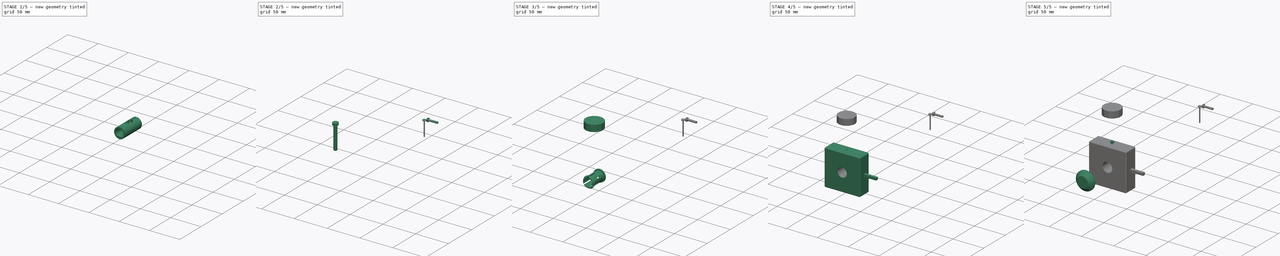
[diagram: build sequence overview — one tinted view per stage of 5, left to right]
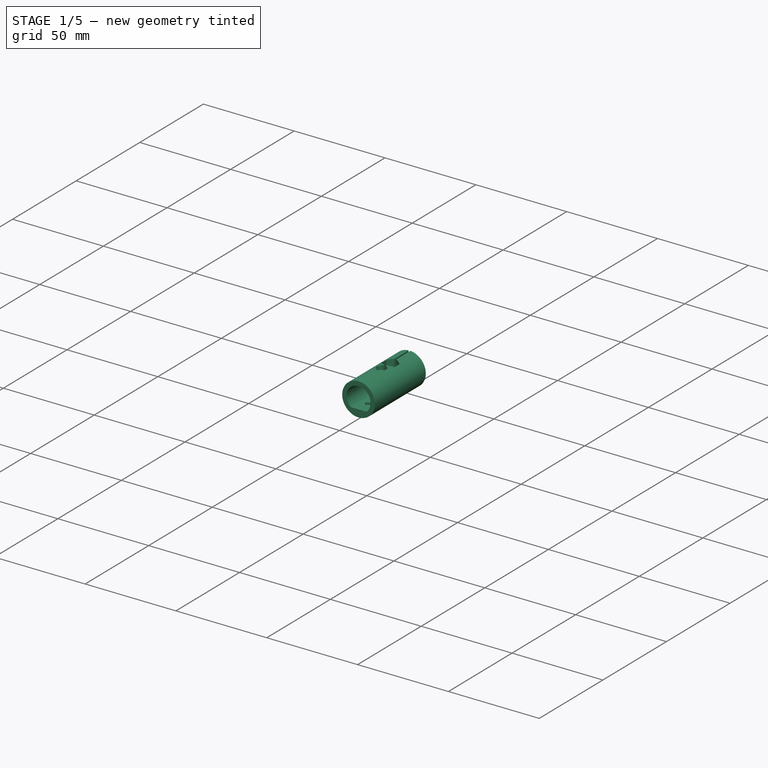
[diagram: stage 1 of 5 — iso view after this stage's code; geometry added in this stage tinted green]
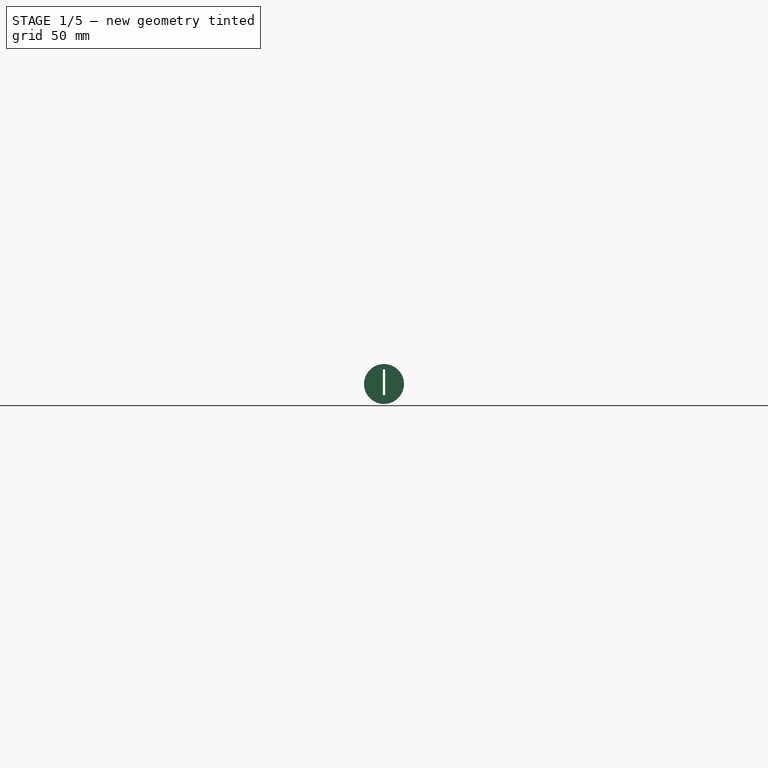
[diagram: stage 1 of 5 — front view after this stage's code; geometry added in this stage tinted green]
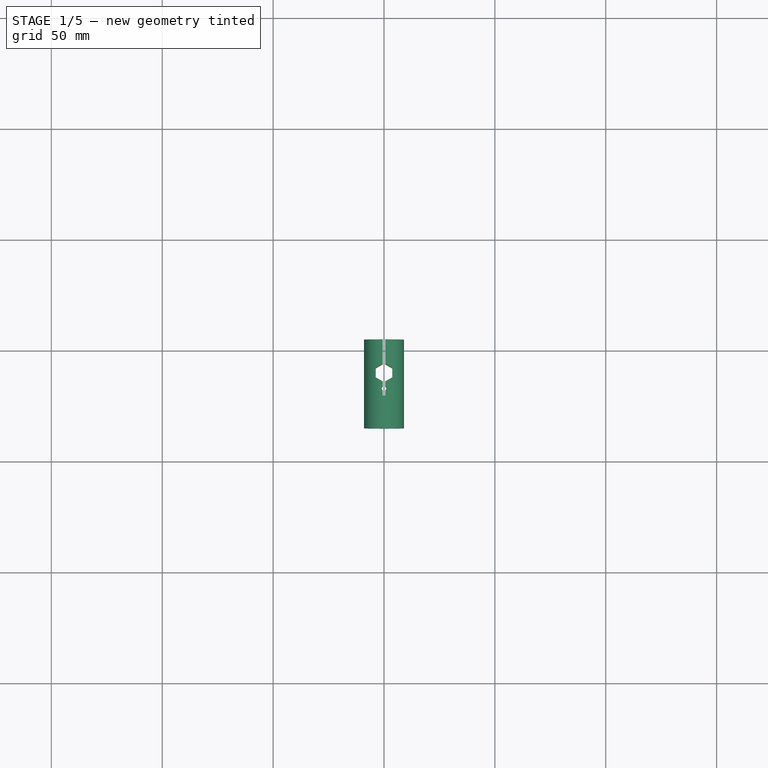
[diagram: stage 1 of 5 — top view after this stage's code; geometry added in this stage tinted green]
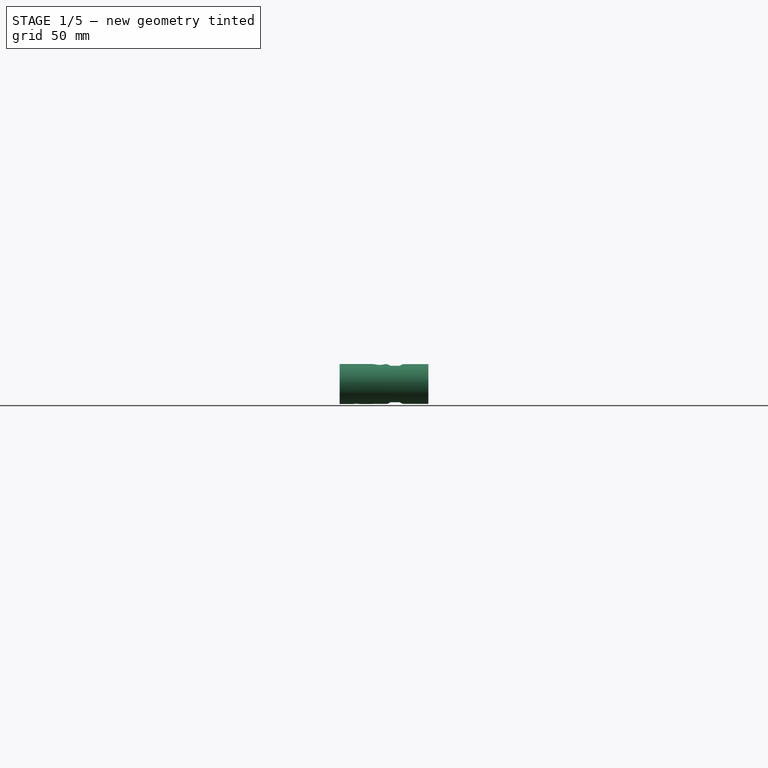
[diagram: stage 1 of 5 — right view after this stage's code; geometry added in this stage tinted green]
FCSTD DOCUMENT  (FreeCAD 1.0R39319 (Git))
Label: mortise_gauge_pencil_holder
License: CERN Open Hardware Licence permissive
LicenseURL: https://cern-ohl.web.cern.ch/
objects: Sketcher::SketchObject×27, PartDesign::Pad×11, PartDesign::Pocket×11, PartDesign::Body×10, PartDesign::Plane×6, PartDesign::SubShapeBinder×6, PartDesign::Revolution×4, PartDesign::Chamfer×3, Part::FeaturePython×3, PartDesign::PolarPattern×1, PartDesign::Hole×1, PartDesign::Fillet×1
note: 174 computed .brp shape members not serialized (recipe doc carries the construction recipe); baked Part::Feature solids carry a one-line shape summary decoded from their .brp

FEATURE [PartDesign::Body] Body001  label="sleeve"
  AllowCompound = false
  Group = -> [DatumPlane001,Sketch008,Pad002,Sketch009,Pad003,Sketch010,Revolution,Sketch011,Pocket006,PolarPattern]
  Origin = -> Origin001
  Tip = -> PolarPattern
FEATURE [PartDesign::Plane] DatumPlane002
  AttachmentOffset = pos=(0,0,-130) rot=(0,0,1;0rad)
  AttachmentSupport = -> [XZ_Plane]
  Length = 60
  MapMode = 5
  Placement = pos=(0,130,-2.89e-14) rot=(1,0,0;1.5708rad)
  ResizeMode = 0
  Width = 60
FEATURE [Sketcher::SketchObject] Sketch
  ArcFitTolerance = 1e-06
  AttachmentSupport = -> [DatumPlane002]
  FullyConstrained = true
  MakeInternals = false
  MapMode = 5
  Placement = pos=(0,130,-2.89e-14) rot=(1,0,0;1.5708rad)
  sketch-geometry (3):
    g0: ArcOfCircle CenterX=0 CenterY=0 CenterZ=0 NormalX=0 NormalY=0 NormalZ=1 AngleXU=0 Radius=6.6 StartAngle=5.42359 EndAngle=10.2844
    g1: LineSegment StartX=-4.30813 StartY=-5 StartZ=0 EndX=4.30813 EndY=-5 EndZ=0
    g2: Circle CenterX=0 CenterY=0 CenterZ=0 NormalX=0 NormalY=0 NormalZ=1 AngleXU=0 Radius=9
  constraints (8):
    c: Diameter(g0) = 13.2
    c: Coincident(g0,g-1)
    c: Horizontal(g1)
    c: Coincident(g0,g1)
    c: Coincident(g0,g1)
    c: Distance(g0,g1) = 5
    c: Coincident(g2,g0)
    c: Diameter(g2) = 18
FEATURE [PartDesign::Pad] Pad
  Direction = (0,-1,2e-16)
  Length = 15
  Length2 = 10
  Placement = pos=(0,130,-2.89e-14) rot=(1,0,0;1.5708rad)
  Profile = -> Sketch
  ReferenceAxis = -> Sketch [N_Axis]
  Refine = true
  Suppressed = false
  Type = 0
FEATURE [Sketcher::SketchObject] Sketch001
  ArcFitTolerance = 1e-06
  AttachmentSupport = -> [Pad]
  ExternalGeometry = -> [Pad]
  FullyConstrained = true
  MakeInternals = false
  MapMode = 5
  Placement = pos=(0,130,-2.89e-14) rot=(-1,0,0;1.5708rad)
  sketch-geometry (1):
    g0: Circle CenterX=0 CenterY=0 CenterZ=0 NormalX=0 NormalY=0 NormalZ=1 AngleXU=0 Radius=9
  constraints (2):
    c: Coincident(g0,g-1)
    c: Equal(g0,g-3)
FEATURE [PartDesign::Pad] Pad001
  BaseFeature = -> Pad
  Direction = (0,1,2e-16)
  Length = 25
  Length2 = 10
  Placement = pos=(0,130,-2.89e-14) rot=(1,0,0;1.5708rad)
  Profile = -> Sketch001
  ReferenceAxis = -> Sketch001 [N_Axis]
  Refine = true
  Suppressed = false
  Type = 0
FEATURE [Sketcher::SketchObject] Sketch002
  ArcFitTolerance = 1e-06
  AttachmentSupport = -> [XY_Plane]
  ExternalGeometry = -> [Pad001]
  FullyConstrained = true
  MakeInternals = false
  MapMode = 5
  sketch-geometry (7):
    g0: LineSegment StartX=-3.7 StartY=142.136 StartZ=0 EndX=-3.7 EndY=137.864 EndZ=0
    g1: LineSegment StartX=-3.7 StartY=137.864 StartZ=0 EndX=-9.8748e-12 EndY=135.728 EndZ=0
    g2: LineSegment StartX=-9.8748e-12 StartY=135.728 StartZ=0 EndX=3.7 EndY=137.864 EndZ=0
    g3: LineSegment StartX=3.7 StartY=137.864 StartZ=0 EndX=3.7 EndY=142.136 EndZ=0
    g4: LineSegment StartX=3.7 StartY=142.136 StartZ=0 EndX=9.8712e-12 EndY=144.272 EndZ=0
    g5: LineSegment StartX=9.8712e-12 StartY=144.272 StartZ=0 EndX=-3.7 EndY=142.136 EndZ=0
    g6: Circle [constr] CenterX=0 CenterY=140 CenterZ=0 NormalX=0 NormalY=0 NormalZ=1 AngleXU=0 Radius=4.27239
  constraints (17):
    c: Coincident(g0,g1)
    c: Coincident(g1,g2)
    c: Coincident(g2,g3)
    c: Coincident(g3,g4)
    c: Coincident(g4,g5)
    c: Coincident(g5,g0)
    c: Equal(g0, g1-g5) x5
    c: PointOnObject(g0,g6)
    c: PointOnObject(g1,g6)
    c: PointOnObject(g2,g6)
    c: PointOnObject(g3,g6)
    c: PointOnObject(g4,g6)
    c: PointOnObject(g5,g6)
    c: PointOnObject(g6,g-2)
    c: Parallel(g0,g-2)
    c: DistanceX(g0,g3) = 7.4
    c: Distance(g6,g-4) = 10
FEATURE [PartDesign::Pocket] Pocket
  BaseFeature = -> Pad001
  Direction = (0,0,-1)
  Length = 5
  Length2 = 5
  Midplane = true
  Placement = pos=(0,130,-2.89e-14) rot=(1,0,0;1.5708rad)
  Profile = -> Sketch002
  ReferenceAxis = -> Sketch002 [N_Axis]
  Refine = true
  Suppressed = false
  Type = 1
FEATURE [Sketcher::SketchObject] Sketch003
  ArcFitTolerance = 1e-06
  AttachmentSupport = -> [XY_Plane]
  ExternalGeometry = -> [Pocket]
  FullyConstrained = true
  MakeInternals = false
  MapMode = 5
  sketch-geometry (4):
    g0: ArcOfCircle CenterX=0 CenterY=155 CenterZ=0 NormalX=0 NormalY=0 NormalZ=1 AngleXU=0 Radius=0.5 StartAngle=7.3e-15 EndAngle=3.14159
    g1: ArcOfCircle CenterX=0 CenterY=130 CenterZ=0 NormalX=0 NormalY=0 NormalZ=1 AngleXU=0 Radius=0.5 StartAngle=3.14159 EndAngle=6.28319
    g2: LineSegment StartX=0.5 StartY=155 StartZ=0 EndX=0.5 EndY=130 EndZ=0
    g3: LineSegment StartX=-0.5 StartY=155 StartZ=0 EndX=-0.5 EndY=130 EndZ=0
  constraints (10):
    c: Tangent(g0,g2) = 1.5708
    c: Tangent(g0,g3) = -1.5708
    c: Tangent(g1,g2) = 1.5708
    c: Tangent(g1,g3) = -1.5708
    c: Equal(g0,g1)
    c: Vertical(g3)
    c: Radius(g0) = 0.5
    c: PointOnObject(g0,g-3)
    c: PointOnObject(g1,g-2)
    c: PointOnObject(g1,g-4)
FEATURE [PartDesign::Pocket] Pocket001
  BaseFeature = -> Pocket
  Direction = (0,0,-1)
  Length = 5
  Length2 = 5
  Midplane = true
  Placement = pos=(0,130,-2.89e-14) rot=(1,0,0;1.5708rad)
  Profile = -> Sketch003
  ReferenceAxis = -> Sketch003 [N_Axis]
  Refine = true
  Suppressed = false
  Type = 1
FEATURE [Sketcher::SketchObject] Sketch004
  ArcFitTolerance = 1e-06
  AttachmentSupport = -> [XY_Plane]
  ExternalGeometry = -> [Pocket001]
  FullyConstrained = true
  MakeInternals = false
  MapMode = 5
  sketch-geometry (9):
    g0: LineSegment StartX=1.4 StartY=121.692 StartZ=0 EndX=1.4 EndY=123.308 EndZ=0
    g1: LineSegment StartX=1.4 StartY=123.308 StartZ=0 EndX=-1.1298e-12 EndY=124.117 EndZ=0
    g2: LineSegment StartX=-1.1298e-12 StartY=124.117 StartZ=0 EndX=-1.4 EndY=123.308 EndZ=0
    g3: LineSegment StartX=-1.4 StartY=123.308 StartZ=0 EndX=-1.4 EndY=121.692 EndZ=0
    g4: LineSegment StartX=-1.4 StartY=121.692 StartZ=0 EndX=1.1289e-12 EndY=120.883 EndZ=0
    g5: LineSegment StartX=1.1289e-12 StartY=120.883 StartZ=0 EndX=1.4 EndY=121.692 EndZ=0
    g6: Circle [constr] CenterX=0 CenterY=122.5 CenterZ=0 NormalX=0 NormalY=0 NormalZ=1 AngleXU=0 Radius=1.61658
    g7: LineSegment [constr] StartX=0 StartY=122.5 StartZ=0 EndX=0 EndY=130 EndZ=0
    g8: LineSegment [constr] StartX=0 StartY=122.5 StartZ=0 EndX=3e-16 EndY=115 EndZ=0
  constraints (22):
    c: Coincident(g0,g1)
    c: Coincident(g1,g2)
    c: Coincident(g2,g3)
    c: Coincident(g3,g4)
    c: Coincident(g4,g5)
    c: Coincident(g5,g0)
    c: Equal(g0, g1-g5) x5
    c: PointOnObject(g0,g6)
    c: PointOnObject(g1,g6)
    c: PointOnObject(g2,g6)
    c: PointOnObject(g3,g6)
    c: PointOnObject(g4,g6)
    c: PointOnObject(g5,g6)
    c: PointOnObject(g6,g-2)
    c: DistanceX(g2,g0) = 2.8
    c: Vertical(g3)
    c: Coincident(g7,g6)
    c: PointOnObject(g7,g-2)
    c: Coincident(g8,g6)
    c: Symmetric(g-3,g-3,g8)
    c: Equal(g8,g7)
    c: Horizontal(g7,g-5)
FEATURE [PartDesign::Pocket] Pocket002
  BaseFeature = -> Pocket001
  Direction = (0,0,-1)
  Length = 5
  Length2 = 5
  Placement = pos=(0,130,-2.89e-14) rot=(1,0,0;1.5708rad)
  Profile = -> Sketch004
  ReferenceAxis = -> Sketch004 [N_Axis]
  Refine = true
  Suppressed = false
  Type = 1
FEATURE [Sketcher::SketchObject] Sketch005
  ArcFitTolerance = 1e-06
  AttachmentSupport = -> [DatumPlane]
  ExternalGeometry = -> [Pocket002]
  FullyConstrained = true
  MakeInternals = false
  MapMode = 5
  Placement = pos=(0,0,9.5) rot=(0,0,1;0rad)
  sketch-geometry (2):
    g0: Circle CenterX=0 CenterY=133.008 CenterZ=0 NormalX=0 NormalY=0 NormalZ=1 AngleXU=0 Radius=2.6
    g1: LineSegment [constr] StartX=-0.5 StartY=133.008 StartZ=0 EndX=0.5 EndY=133.008 EndZ=0
  constraints (5):
    c: PointOnObject(g0,g-2)
    c: Diameter(g0) = 5.2
    c: Symmetric(g-3,g-3,g1)
    c: Symmetric(g-4,g-4,g1)
    c: PointOnObject(g0,g1)
FEATURE [PartDesign::Pocket] Pocket003
  BaseFeature = -> Pocket002
  Direction = (0,0,-1)
  Length = 3
  Length2 = 5
  Placement = pos=(0,130,-2.89e-14) rot=(1,0,0;1.5708rad)
  Profile = -> Sketch005
  ReferenceAxis = -> Sketch005 [N_Axis]
  Refine = true
  Suppressed = false
  Type = 0
FEATURE [Sketcher::SketchObject] Sketch006
  ArcFitTolerance = 1e-06
  AttachmentSupport = -> [DatumPlane]
  ExternalGeometry = -> [Sketch005]
  FullyConstrained = true
  MakeInternals = false
  MapMode = 5
  Placement = pos=(0,0,9.5) rot=(0,0,1;0rad)
  sketch-geometry (1):
    g0: Circle CenterX=0 CenterY=133.008 CenterZ=0 NormalX=0 NormalY=0 NormalZ=1 AngleXU=0 Radius=1.05
  constraints (2):
    c: Diameter(g0) = 2.1
    c: Coincident(g-3,g0)
FEATURE [PartDesign::Pocket] Pocket004
  BaseFeature = -> Pocket003
  Direction = (0,0,-1)
  Length = 5
  Length2 = 5
  Placement = pos=(0,130,-2.89e-14) rot=(1,0,0;1.5708rad)
  Profile = -> Sketch006
  ReferenceAxis = -> Sketch006 [N_Axis]
  Refine = true
  Suppressed = false
  Type = 1
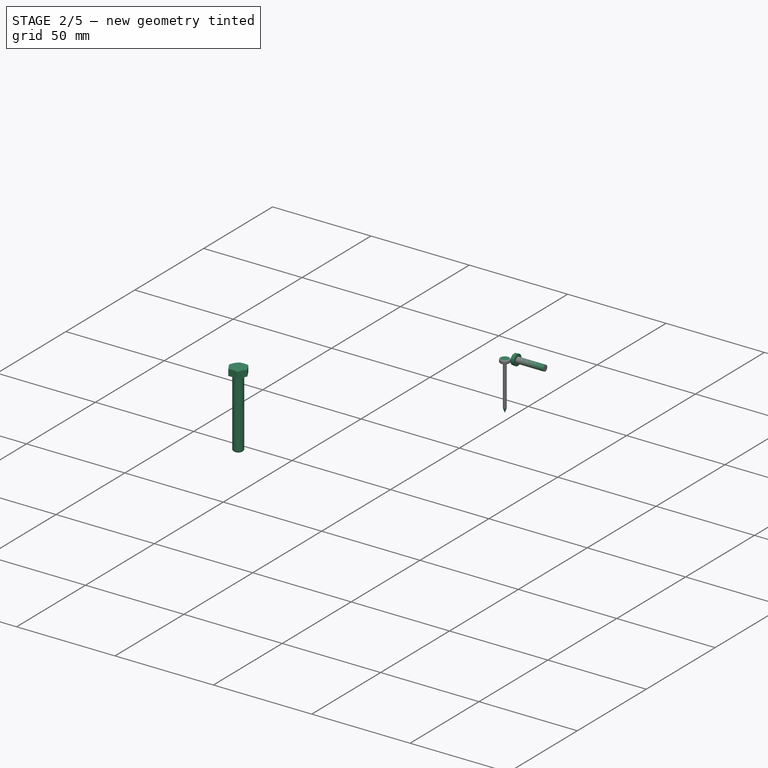
[diagram: stage 2 of 5 — iso view after this stage's code; geometry added in this stage tinted green]
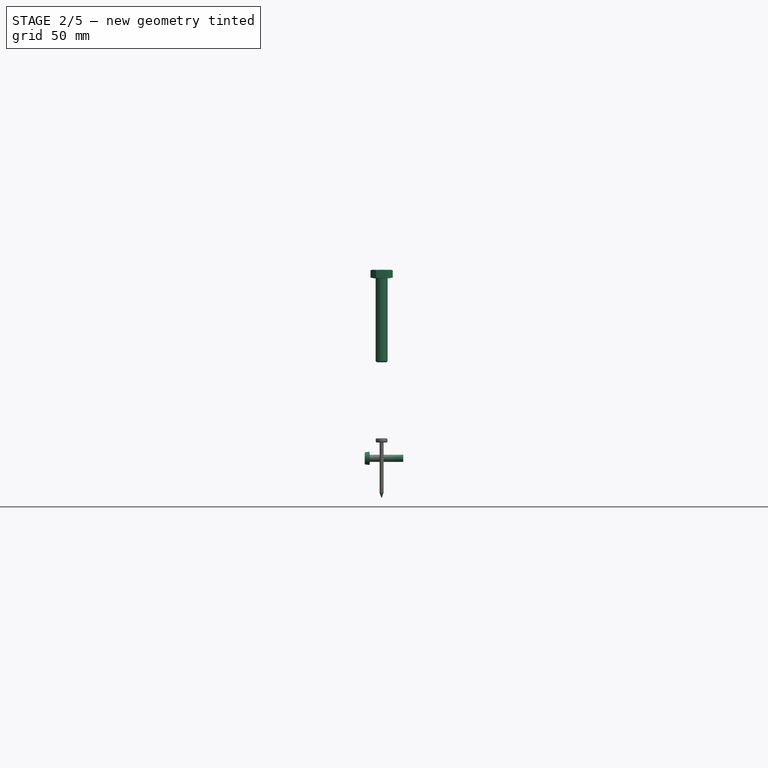
[diagram: stage 2 of 5 — front view after this stage's code; geometry added in this stage tinted green]
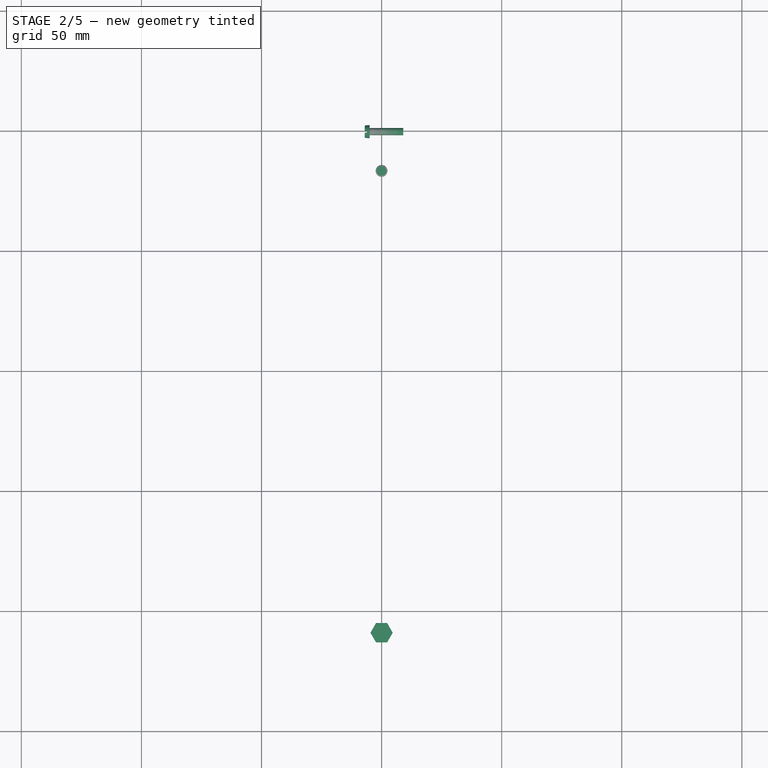
[diagram: stage 2 of 5 — top view after this stage's code; geometry added in this stage tinted green]
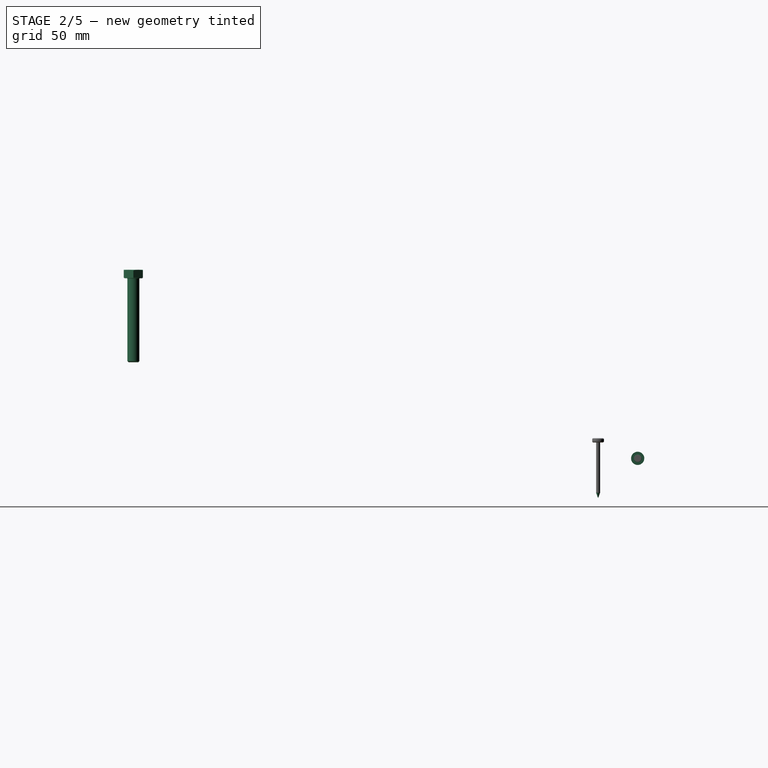
[diagram: stage 2 of 5 — right view after this stage's code; geometry added in this stage tinted green]
FEATURE [PartDesign::Plane] DatumPlane003
  AttachmentOffset = pos=(0,0,-5) rot=(0,0,1;0rad)
  AttachmentSupport = -> [YZ_Plane]
  Length = 198.974
  MapMode = 5
  Placement = pos=(-5,0,0) rot=(0.57735,0.57735,0.57735;2.0944rad)
  ResizeMode = 0
  Width = 68.9737
FEATURE [Sketcher::SketchObject] Sketch013
  ArcFitTolerance = 1e-06
  AttachmentSupport = -> [DatumPlane003]
  ExternalGeometry = -> [Pocket004]
  FullyConstrained = true
  MakeInternals = false
  MapMode = 5
  Placement = pos=(-5,0,0) rot=(0.57735,0.57735,0.57735;2.0944rad)
  sketch-geometry (3):
    g0: Circle CenterX=149.492 CenterY=-4.26e-14 CenterZ=0 NormalX=0 NormalY=0 NormalZ=1 AngleXU=0 Radius=1.6
    g1: LineSegment [constr] StartX=143.984 StartY=-4.26e-14 StartZ=0 EndX=149.492 EndY=-4.26e-14 EndZ=0
    g2: LineSegment [constr] StartX=149.492 StartY=-4.26e-14 StartZ=0 EndX=155 EndY=-4.26e-14 EndZ=0
  constraints (8):
    c: Diameter(g0) = 3.2
    c: Symmetric(g-3,g-3,g1)
    c: Coincident(g1,g0)
    c: Horizontal(g1)
    c: Coincident(g2,g0)
    c: PointOnObject(g2,g-4)
    c: Horizontal(g2)
    c: Equal(g2,g1)
FEATURE [PartDesign::Pocket] Pocket007
  BaseFeature = -> Pocket004
  Direction = (-1,0,0)
  Length = 0
  Length2 = 5
  Placement = pos=(0,130,-2.89e-14) rot=(1,0,0;1.5708rad)
  Profile = -> Sketch013
  ReferenceAxis = -> Sketch013 [N_Axis]
  Refine = true
  Suppressed = false
  Type = 3
  UpToFace = -> Pocket004 [Face17]
FEATURE [Sketcher::SketchObject] Sketch014
  ArcFitTolerance = 1e-06
  AttachmentSupport = -> [DatumPlane003]
  ExternalGeometry = -> [Pocket007]
  FullyConstrained = true
  MakeInternals = false
  MapMode = 5
  Placement = pos=(-5,0,0) rot=(0.57735,0.57735,0.57735;2.0944rad)
  sketch-geometry (1):
    g0: Circle CenterX=149.492 CenterY=0 CenterZ=0 NormalX=0 NormalY=0 NormalZ=1 AngleXU=0 Radius=3.25
  constraints (2):
    c: Diameter(g0) = 6.5
    c: Coincident(g0,g-3)
FEATURE [PartDesign::Pocket] Pocket008
  BaseFeature = -> Pocket007
  Direction = (-1,0,0)
  Length = 5
  Length2 = 5
  Placement = pos=(0,130,-2.89e-14) rot=(1,0,0;1.5708rad)
  Profile = -> Sketch014
  ReferenceAxis = -> Sketch014 [N_Axis]
  Refine = true
  Suppressed = false
  Type = 1
FEATURE [Sketcher::SketchObject] Sketch015
  ArcFitTolerance = 1e-06
  AttachmentSupport = -> [Pocket008]
  ExternalGeometry = -> [Pocket008]
  FullyConstrained = true
  MakeInternals = false
  MapMode = 5
  Placement = pos=(0.5,130,-2.89e-14) rot=(0.707107,0,-0.707107;3.14159rad)
  sketch-geometry (1):
    g0: Circle CenterX=0 CenterY=-19.4919 CenterZ=0 NormalX=0 NormalY=0 NormalZ=1 AngleXU=0 Radius=1.4
  constraints (2):
    c: Diameter(g0) = 2.8
    c: Coincident(g0,g-3)
FEATURE [PartDesign::Pocket] Pocket009
  BaseFeature = -> Pocket008
  Direction = (1,0,2e-16)
  Length = 5
  Length2 = 5
  Placement = pos=(0,130,-2.89e-14) rot=(1,0,0;1.5708rad)
  Profile = -> Sketch015
  ReferenceAxis = -> Sketch015 [N_Axis]
  Refine = true
  Suppressed = false
  Type = 1
FEATURE [PartDesign::Body] Body007  label="nail_cover"
  AllowCompound = false
  Group = -> [Sketch022,Pad007,Sketch023,Pocket011,Binder003,DatumPlane005]
  Origin = -> Origin007
  Tip = -> Pocket011
FEATURE [Part::FeaturePython] Screw001  label="M5x35-Screw"  # WARN: FeaturePython — macro-defined, semantics opaque (R4)
  Diameter = 7
  Invert = false
  LeftHanded = false
  Length = 8
  LengthCustom = 35
  MatchOuter = false
  OffsetAngle = 0
  Placement = pos=(-4e-16,-60.5,75) rot=(0,0,1;0rad)
  Thread = false
  Type = 40
FEATURE [PartDesign::Body] Body008  label="screw_knob"
  AllowCompound = false
  Group = -> [Binder004,Sketch025,Pad009,Sketch026,Pad010]
  Origin = -> Origin008
  Tip = -> Pad010
FEATURE [PartDesign::SubShapeBinder] Binder005
  BindCopyOnChange = 0
  BindMode = 0
  ClaimChildren = false
  Context = -> Body009 [Binder005.]
  Fuse = false
  MakeFace = true
  OffsetFill = false
  OffsetIntersection = false
  OffsetJoinType = 0
  OffsetOpenResult = false
  PartialLoad = false
  Refine = true
  Relative = true
  Support = -> [Body]
  _Version = 2
FEATURE [Sketcher::SketchObject] Sketch027
  ArcFitTolerance = 1e-06
  AttachmentSupport = -> [YZ_Plane009]
  ExternalGeometry = -> [Binder005]
  FullyConstrained = true
  MakeInternals = false
  MapMode = 5
  Placement = pos=(0,0,0) rot=(0.57735,0.57735,0.57735;2.0944rad)
  sketch-geometry (9):
    g0: LineSegment StartX=135.46 StartY=8.4 StartZ=0 EndX=135.46 EndY=6.6 EndZ=0
    g1: LineSegment StartX=135.46 StartY=6.6 StartZ=0 EndX=133.831 EndY=6.6 EndZ=0
    g2: LineSegment StartX=133.831 StartY=6.6 StartZ=0 EndX=133.831 EndY=-14.338 EndZ=0
    g3: LineSegment StartX=133.831 StartY=-14.338 StartZ=0 EndX=133.008 EndY=-16.6 EndZ=0
    g4: LineSegment StartX=133.008 StartY=-16.6 StartZ=0 EndX=133.008 EndY=8.4 EndZ=0
    g5: LineSegment StartX=133.008 StartY=8.4 StartZ=0 EndX=135.46 EndY=8.4 EndZ=0
    g6: LineSegment [constr] StartX=135.46 StartY=6.6 StartZ=0 EndX=135.56 EndY=6.6 EndZ=0
    g7: LineSegment [constr] StartX=133.931 StartY=6.5 StartZ=0 EndX=133.931 EndY=6.6 EndZ=0
    g8: LineSegment [constr] StartX=133.931 StartY=6.5 StartZ=0 EndX=133.831 EndY=6.5 EndZ=0
  constraints (27):
    c: Vertical(g0)
    c: Coincident(g0,g1)
    c: Horizontal(g1)
    c: Coincident(g1,g2)
    c: Vertical(g2)
    c: Coincident(g2,g3)
    c: Coincident(g3,g4)
    c: Vertical(g4)
    c: Coincident(g4,g5)
    c: Coincident(g5,g0)
    c: Horizontal(g5)
    c: Coincident(g6,g0)
    c: PointOnObject(g6,g-3)
    c: Horizontal(g6)
    c: Coincident(g7,g-4)
    c: PointOnObject(g7,g1)
    c: Vertical(g7)
    c: Equal(g7,g6)
    c: DistanceX(g6,g6) = 0.1
    c: DistanceY(g0,g0) = 1.8
    c: Coincident(g8,g7)
    c: PointOnObject(g8,g2)
    c: Horizontal(g8)
    c: Equal(g8,g7)
    c: PointOnObject(g-6,g4)
    c: Angle(g3,g4) = 0.349066
    c: DistanceY(g4,g4) = 25
FEATURE [PartDesign::Revolution] Revolution003
  Angle = 360
  Angle2 = 60
  Axis = (0,0,1)
  Base = (0,133.008,-16.6)
  Placement = pos=(0,0,0) rot=(1,1,1;2.0944rad)
  Profile = -> Sketch027
  ReferenceAxis = -> Sketch027 [Edge5]
  Refine = true
  Reversed = true
  Suppressed = false
  Type = 0
FEATURE [PartDesign::Fillet] Fillet
  Base = -> Revolution003 [Edge1,Edge2]
  BaseFeature = -> Revolution003
  Placement = pos=(0,0,0) rot=(1,1,1;2.0944rad)
  Radius = 0.5
  Refine = true
  SupportTransform = false
  Suppressed = false
  UseAllEdges = false
FEATURE [PartDesign::Body] Body009  label="nail"
  AllowCompound = false
  Group = -> [Sketch027,Binder005,Revolution003,Fillet]
  Origin = -> Origin009
  Tip = -> Fillet
FEATURE [Part::FeaturePython] Screw002  label="M3x14-Screw"  # WARN: FeaturePython — macro-defined, semantics opaque (R4)
  BaseObject = -> Body [Pocket009.Edge102]
  Diameter = 4
  Invert = true
  LeftHanded = false
  Length = 6
  LengthCustom = 14
  MatchOuter = false
  OffsetAngle = 0
  Placement = pos=(-5,149.492,-2.2e-15) rot=(0,-1,0;1.5708rad)
  Thread = false
  Type = 52
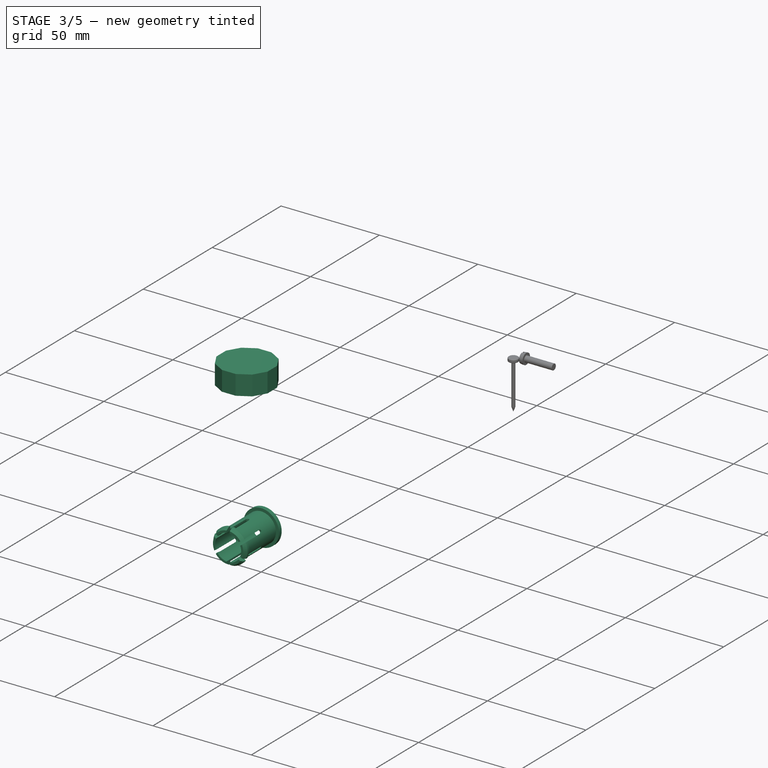
[diagram: stage 3 of 5 — iso view after this stage's code; geometry added in this stage tinted green]
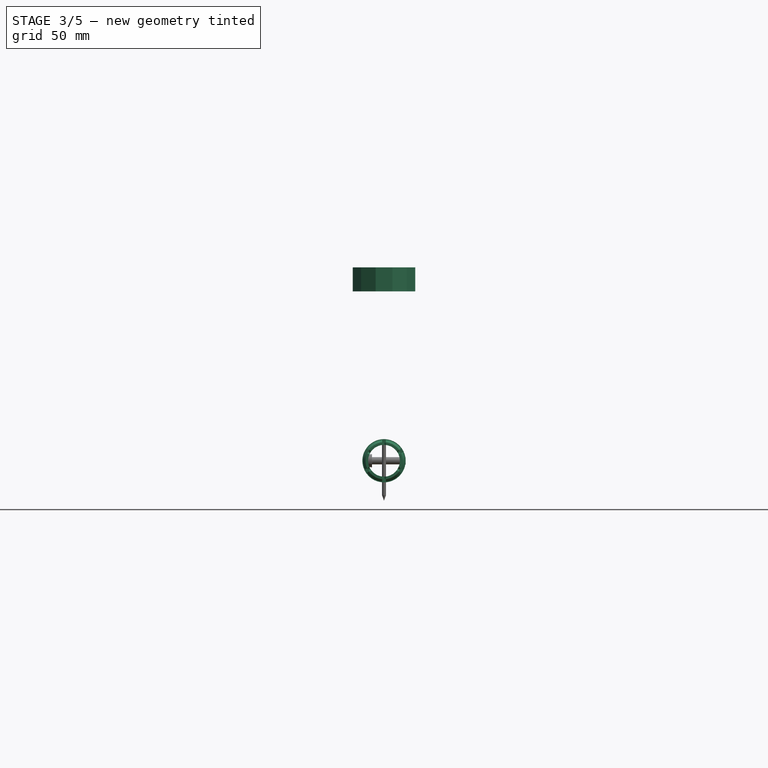
[diagram: stage 3 of 5 — front view after this stage's code; geometry added in this stage tinted green]
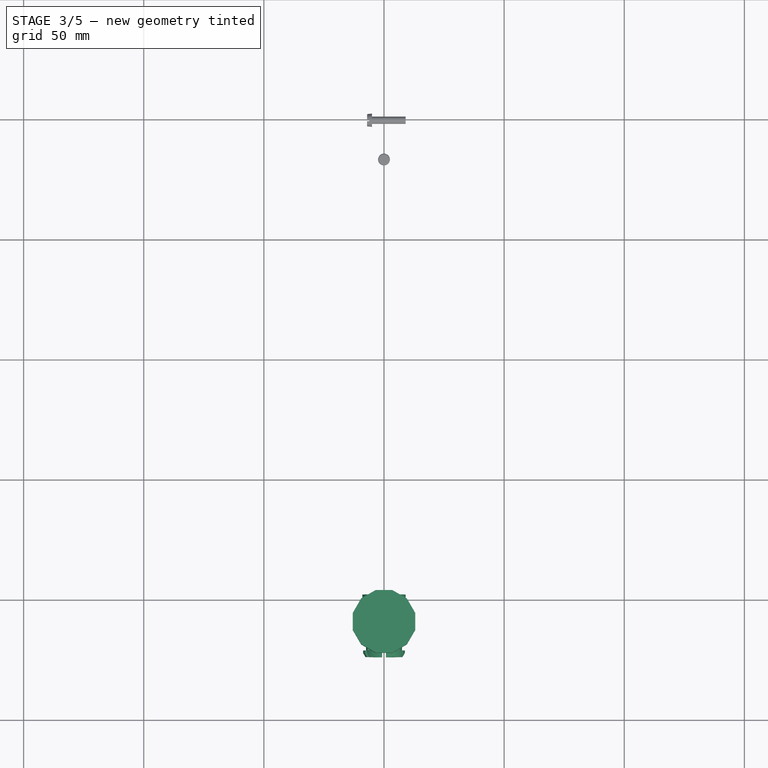
[diagram: stage 3 of 5 — top view after this stage's code; geometry added in this stage tinted green]
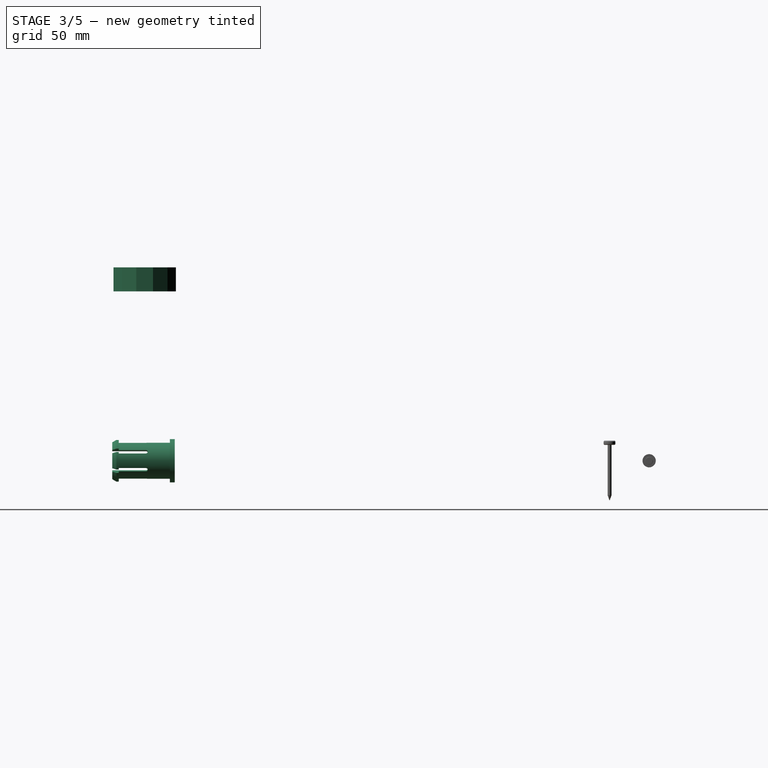
[diagram: stage 3 of 5 — right view after this stage's code; geometry added in this stage tinted green]
FEATURE [PartDesign::Plane] DatumPlane
  AttachmentOffset = pos=(0,0,9.5) rot=(0,0,1;0rad)
  AttachmentSupport = -> [XY_Plane]
  Length = 68.9737
  MapMode = 5
  Placement = pos=(0,0,9.5) rot=(0,0,1;0rad)
  ResizeMode = 0
  Width = 198.974
FEATURE [PartDesign::Plane] DatumPlane001
  AttachmentOffset = pos=(0,0,50) rot=(0,0,1;0rad)
  AttachmentSupport = -> [XZ_Plane001]
  Length = 60
  MapMode = 5
  Placement = pos=(0,-50,1.11e-14) rot=(1,0,0;1.5708rad)
  ResizeMode = 0
  Width = 60
FEATURE [Sketcher::SketchObject] Sketch008
  ArcFitTolerance = 1e-06
  AttachmentSupport = -> [DatumPlane001]
  FullyConstrained = true
  MakeInternals = false
  MapMode = 5
  Placement = pos=(0,-50,1.11e-14) rot=(1,0,0;1.5708rad)
  sketch-geometry (2):
    g0: Circle CenterX=0 CenterY=0 CenterZ=0 NormalX=0 NormalY=0 NormalZ=1 AngleXU=0 Radius=6.6
    g1: Circle CenterX=0 CenterY=0 CenterZ=0 NormalX=0 NormalY=0 NormalZ=1 AngleXU=0 Radius=7.5
  constraints (4):
    c: Coincident(g0,g-1)
    c: Coincident(g1,g0)
    c: Diameter(g0) = 13.2
    c: Diameter(g1) = 15
FEATURE [PartDesign::Pad] Pad002
  Direction = (0,-1,2e-16)
  Length = 24
  Length2 = 10
  Placement = pos=(0,-50,1.11e-14) rot=(1,0,0;1.5708rad)
  Profile = -> Sketch008
  ReferenceAxis = -> Sketch008 [N_Axis]
  Refine = true
  Suppressed = false
  Type = 0
FEATURE [Sketcher::SketchObject] Sketch009
  ArcFitTolerance = 1e-06
  AttachmentSupport = -> [Pad002]
  ExternalGeometry = -> [Pad002]
  FullyConstrained = true
  MakeInternals = false
  MapMode = 5
  Placement = pos=(0,-50,1.11e-14) rot=(-1,0,0;1.5708rad)
  sketch-geometry (2):
    g0: Circle CenterX=0 CenterY=0 CenterZ=0 NormalX=0 NormalY=0 NormalZ=1 AngleXU=0 Radius=6.6
    g1: Circle CenterX=0 CenterY=0 CenterZ=0 NormalX=0 NormalY=0 NormalZ=1 AngleXU=0 Radius=9
  constraints (4):
    c: Coincident(g0,g-1)
    c: Equal(g0,g-3)
    c: Diameter(g1) = 18
    c: Coincident(g1,g0)
FEATURE [PartDesign::Pad] Pad003
  BaseFeature = -> Pad002
  Direction = (0,1,2e-16)
  Length = 2
  Length2 = 10
  Placement = pos=(0,-50,1.11e-14) rot=(1,0,0;1.5708rad)
  Profile = -> Sketch009
  ReferenceAxis = -> Sketch009 [N_Axis]
  Refine = true
  Suppressed = false
  Type = 0
FEATURE [Sketcher::SketchObject] Sketch010
  ArcFitTolerance = 1e-06
  AttachmentSupport = -> [XY_Plane001]
  ExternalGeometry = -> [Pad003]
  FullyConstrained = true
  MakeInternals = false
  MapMode = 5
  sketch-geometry (5):
    g0: LineSegment StartX=-7.5 StartY=-74 StartZ=0 EndX=-7.5 EndY=-71.3 EndZ=0
    g1: LineSegment StartX=-7.5 StartY=-71.3 StartZ=0 EndX=-8.7 EndY=-71.3 EndZ=0
    g2: LineSegment StartX=-8.7 StartY=-71.3 StartZ=0 EndX=-8.7 EndY=-72.3 EndZ=0
    g3: LineSegment StartX=-8.7 StartY=-72.3 StartZ=0 EndX=-7.7 EndY=-74 EndZ=0
    g4: LineSegment StartX=-7.7 StartY=-74 StartZ=0 EndX=-7.5 EndY=-74 EndZ=0
  constraints (14):
    c: Coincident(g-3,g0)
    c: Vertical(g0)
    c: Coincident(g0,g1)
    c: Horizontal(g1)
    c: Coincident(g1,g2)
    c: Vertical(g2)
    c: Coincident(g2,g3)
    c: Coincident(g3,g4)
    c: Coincident(g4,g0)
    c: Horizontal(g4)
    c: DistanceY(g0,g0) = 2.7
    c: Distance(g1,g1) = 1.2
    c: DistanceX(g4,g4) = 0.2
    c: DistanceY(g2,g2) = 1
FEATURE [PartDesign::Revolution] Revolution
  Angle = 360
  Angle2 = 60
  Axis = (0,1,0)
  Base = (0,0,0)
  BaseFeature = -> Pad003
  Placement = pos=(0,-50,1.11e-14) rot=(1,0,0;1.5708rad)
  Profile = -> Sketch010
  ReferenceAxis = -> Sketch010 [V_Axis]
  Refine = true
  Suppressed = false
  Type = 0
FEATURE [Sketcher::SketchObject] Sketch011
  ArcFitTolerance = 1e-06
  AttachmentSupport = -> [XY_Plane001]
  ExternalGeometry = -> [Revolution]
  FullyConstrained = true
  MakeInternals = false
  MapMode = 5
  sketch-geometry (4):
    g0: LineSegment StartX=-0.8 StartY=-74 StartZ=0 EndX=-0.8 EndY=-60 EndZ=0
    g1: ArcOfCircle CenterX=0 CenterY=-60 CenterZ=0 NormalX=0 NormalY=0 NormalZ=1 AngleXU=0 Radius=0.8 StartAngle=-4.4e-15 EndAngle=3.14159
    g2: LineSegment StartX=0.8 StartY=-60 StartZ=0 EndX=0.8 EndY=-74 EndZ=0
    g3: LineSegment StartX=-0.8 StartY=-74 StartZ=0 EndX=0.8 EndY=-74 EndZ=0
  constraints (12):
    c: PointOnObject(g0,g-3)
    c: Vertical(g0)
    c: Tangent(g0,g1) = 1.5708
    c: Angle(g1) = 3.14159
    c: Coincident(g1,g2)
    c: PointOnObject(g2,g-3)
    c: Vertical(g2)
    c: PointOnObject(g1,g-2)
    c: Radius(g1) = 0.8
    c: DistanceY(g0,g0) = 14
    c: Coincident(g3,g0)
    c: Coincident(g3,g2)
FEATURE [PartDesign::Pocket] Pocket006
  BaseFeature = -> Revolution
  Direction = (0,0,-1)
  Length = 5
  Length2 = 5
  Midplane = true
  Placement = pos=(0,-50,1.11e-14) rot=(1,0,0;1.5708rad)
  Profile = -> Sketch011
  ReferenceAxis = -> Sketch011 [N_Axis]
  Refine = true
  Suppressed = false
  Type = 1
FEATURE [PartDesign::PolarPattern] PolarPattern
  Angle = 360
  Axis = -> Y_Axis001
  BaseFeature = -> Pocket006
  Mode = 0
  Occurrences = 3
  Offset = 120
  Originals = -> [Pocket006]
  Placement = pos=(0,-50,1.11e-14) rot=(1,0,0;1.5708rad)
  Refine = true
  Suppressed = false
  TransformMode = 0
FEATURE [PartDesign::SubShapeBinder] Binder004
  BindCopyOnChange = 0
  BindMode = 0
  ClaimChildren = false
  Context = -> Body008 [Binder004.]
  Fuse = false
  MakeFace = true
  OffsetFill = false
  OffsetIntersection = false
  OffsetJoinType = 0
  OffsetOpenResult = false
  PartialLoad = false
  Refine = true
  Relative = true
  Support = -> [Screw001]
  _Version = 2
FEATURE [Sketcher::SketchObject] Sketch025
  ArcFitTolerance = 1e-06
  AttachmentSupport = -> [Binder004]
  ExternalGeometry = -> [Binder004]
  FullyConstrained = true
  MakeInternals = false
  MapMode = 5
  Placement = pos=(0,0,78.5) rot=(0,0,1;0rad)
  sketch-geometry (20):
    g0: LineSegment StartX=-4.6188 StartY=-52.5 StartZ=0 EndX=-9.2376 EndY=-60.5 EndZ=0
    g1: LineSegment StartX=-9.2376 StartY=-60.5 StartZ=0 EndX=-4.6188 EndY=-68.5 EndZ=0
    g2: LineSegment StartX=-4.6188 StartY=-68.5 StartZ=0 EndX=4.6188 EndY=-68.5 EndZ=0
    g3: LineSegment StartX=4.6188 StartY=-68.5 StartZ=0 EndX=9.2376 EndY=-60.5 EndZ=0
    g4: LineSegment StartX=9.2376 StartY=-60.5 StartZ=0 EndX=4.6188 EndY=-52.5 EndZ=0
    g5: LineSegment StartX=4.6188 StartY=-52.5 StartZ=0 EndX=-4.6188 EndY=-52.5 EndZ=0
    g6: Circle [constr] CenterX=-4e-16 CenterY=-60.5 CenterZ=0 NormalX=0 NormalY=0 NormalZ=1 AngleXU=0 Radius=9.2376
    g7: LineSegment StartX=-13 StartY=-57.0167 StartZ=0 EndX=-13 EndY=-63.9833 EndZ=0
    g8: LineSegment StartX=-13 StartY=-63.9833 StartZ=0 EndX=-9.51666 EndY=-70.0167 EndZ=0
    g9: LineSegment StartX=-9.51666 StartY=-70.0167 StartZ=0 EndX=-3.48334 EndY=-73.5 EndZ=0
    g10: LineSegment StartX=-3.48334 StartY=-73.5 StartZ=0 EndX=3.48334 EndY=-73.5 EndZ=0
    g11: LineSegment StartX=3.48334 StartY=-73.5 StartZ=0 EndX=9.51666 EndY=-70.0167 EndZ=0
    g12: LineSegment StartX=9.51666 StartY=-70.0167 StartZ=0 EndX=13 EndY=-63.9833 EndZ=0
    g13: LineSegment StartX=13 StartY=-63.9833 StartZ=0 EndX=13 EndY=-57.0167 EndZ=0
    g14: LineSegment StartX=13 StartY=-57.0167 StartZ=0 EndX=9.51666 EndY=-50.9833 EndZ=0
    g15: LineSegment StartX=9.51666 StartY=-50.9833 StartZ=0 EndX=3.48334 EndY=-47.5 EndZ=0
    g16: LineSegment StartX=3.48334 StartY=-47.5 StartZ=0 EndX=-3.48334 EndY=-47.5 EndZ=0
    g17: LineSegment StartX=-3.48334 StartY=-47.5 StartZ=0 EndX=-9.51666 EndY=-50.9833 EndZ=0
    g18: LineSegment StartX=-9.51666 StartY=-50.9833 StartZ=0 EndX=-13 EndY=-57.0167 EndZ=0
    g19: Circle [constr] CenterX=-4e-16 CenterY=-60.5 CenterZ=0 NormalX=0 NormalY=0 NormalZ=1 AngleXU=0 Radius=13.4586
  constraints (44):
    c: Coincident(g0,g1)
    c: Coincident(g1,g2)
    c: Coincident(g2,g3)
    c: Coincident(g3,g4)
    c: Coincident(g4,g5)
    c: Coincident(g5,g0)
    c: Equal(g0, g1-g5) x5
    c: PointOnObject(g0,g6)
    c: PointOnObject(g1,g6)
    c: PointOnObject(g2,g6)
    c: PointOnObject(g3,g6)
    c: PointOnObject(g4,g6)
    c: PointOnObject(g5,g6)
    c: Coincident(g6,g-3)
    c: Horizontal(g5)
    c: Distance(g0,g3) = 16
    c: Coincident(g7,g8)
    c: Coincident(g8,g9)
    c: Coincident(g9,g10)
    c: Coincident(g10,g11)
    c: Coincident(g11,g12)
    c: Coincident(g12,g13)
    c: Coincident(g13,g14)
    c: Coincident(g14,g15)
    c: Coincident(g15,g16)
    c: Coincident(g16,g17)
    c: Coincident(g17,g18)
    c: Coincident(g18,g7)
    c: Equal(g7, g8-g18) x11
    c: PointOnObject(g7,g19)
    c: PointOnObject(g8,g19)
    c: PointOnObject(g9,g19)
    c: PointOnObject(g10,g19)
    c: PointOnObject(g11,g19)
    c: PointOnObject(g12,g19)
    c: PointOnObject(g13,g19)
    c: PointOnObject(g14,g19)
    c: PointOnObject(g15,g19)
    c: PointOnObject(g16,g19)
    c: PointOnObject(g17,g19)
    c: PointOnObject(g18,g19)
    c: Vertical(g7)
    c: Coincident(g6,g19)
    c: DistanceX(g7,g13) = 26
FEATURE [PartDesign::Pad] Pad009
  Direction = (0,0,1)
  Length = 8
  Length2 = 10
  Profile = -> Sketch025
  ReferenceAxis = -> Sketch025 [N_Axis]
  Refine = true
  Reversed = true
  Suppressed = false
  Type = 0
FEATURE [Sketcher::SketchObject] Sketch026
  ArcFitTolerance = 1e-06
  AttachmentSupport = -> [Pad009]
  ExternalGeometry = -> [Binder004,Pad009]
  FullyConstrained = true
  MakeInternals = false
  MapMode = 5
  Placement = pos=(0,0,78.5) rot=(0,0,1;0rad)
  sketch-geometry (13):
    g0: LineSegment StartX=-13 StartY=-57.0167 StartZ=0 EndX=-13 EndY=-63.9833 EndZ=0
    g1: LineSegment StartX=-13 StartY=-63.9833 StartZ=0 EndX=-9.51666 EndY=-70.0167 EndZ=0
    g2: LineSegment StartX=-9.51666 StartY=-70.0167 StartZ=0 EndX=-3.48334 EndY=-73.5 EndZ=0
    g3: LineSegment StartX=-3.48334 StartY=-73.5 StartZ=0 EndX=3.48334 EndY=-73.5 EndZ=0
    g4: LineSegment StartX=3.48334 StartY=-73.5 StartZ=0 EndX=9.51666 EndY=-70.0167 EndZ=0
    g5: LineSegment StartX=9.51666 StartY=-70.0167 StartZ=0 EndX=13 EndY=-63.9833 EndZ=0
    g6: LineSegment StartX=13 StartY=-63.9833 StartZ=0 EndX=13 EndY=-57.0167 EndZ=0
    g7: LineSegment StartX=13 StartY=-57.0167 StartZ=0 EndX=9.51666 EndY=-50.9833 EndZ=0
    g8: LineSegment StartX=9.51666 StartY=-50.9833 StartZ=0 EndX=3.48334 EndY=-47.5 EndZ=0
    g9: LineSegment StartX=3.48334 StartY=-47.5 StartZ=0 EndX=-3.48334 EndY=-47.5 EndZ=0
    g10: LineSegment StartX=-3.48334 StartY=-47.5 StartZ=0 EndX=-9.51666 EndY=-50.9833 EndZ=0
    g11: LineSegment StartX=-9.51666 StartY=-50.9833 StartZ=0 EndX=-13 EndY=-57.0167 EndZ=0
    g12: Circle [constr] CenterX=-4e-16 CenterY=-60.5 CenterZ=0 NormalX=0 NormalY=0 NormalZ=1 AngleXU=0 Radius=13.4586
  constraints (28):
    c: Coincident(g0,g1)
    c: Coincident(g1,g2)
    c: Coincident(g2,g3)
    c: Coincident(g3,g4)
    c: Coincident(g4,g5)
    c: Coincident(g5,g6)
    c: Coincident(g6,g7)
    c: Coincident(g7,g8)
    c: Coincident(g8,g9)
    c: Coincident(g9,g10)
    c: Coincident(g10,g11)
    c: Coincident(g11,g0)
    c: Equal(g0, g1-g11) x11
    c: PointOnObject(g0,g12)
    c: PointOnObject(g1,g12)
    c: PointOnObject(g2,g12)
    c: PointOnObject(g3,g12)
    c: PointOnObject(g4,g12)
    c: PointOnObject(g5,g12)
    c: PointOnObject(g6,g12)
    c: PointOnObject(g7,g12)
    c: PointOnObject(g8,g12)
    c: PointOnObject(g9,g12)
    c: PointOnObject(g10,g12)
    c: PointOnObject(g11,g12)
    c: Coincident(g12,g-3)
    c: Vertical(g0)
    c: Equal(g-4,g0)
FEATURE [PartDesign::Pad] Pad010
  BaseFeature = -> Pad009
  Direction = (0,0,1)
  Length = 2
  Length2 = 10
  Profile = -> Sketch026
  ReferenceAxis = -> Sketch026 [N_Axis]
  Refine = true
  Suppressed = false
  Type = 0
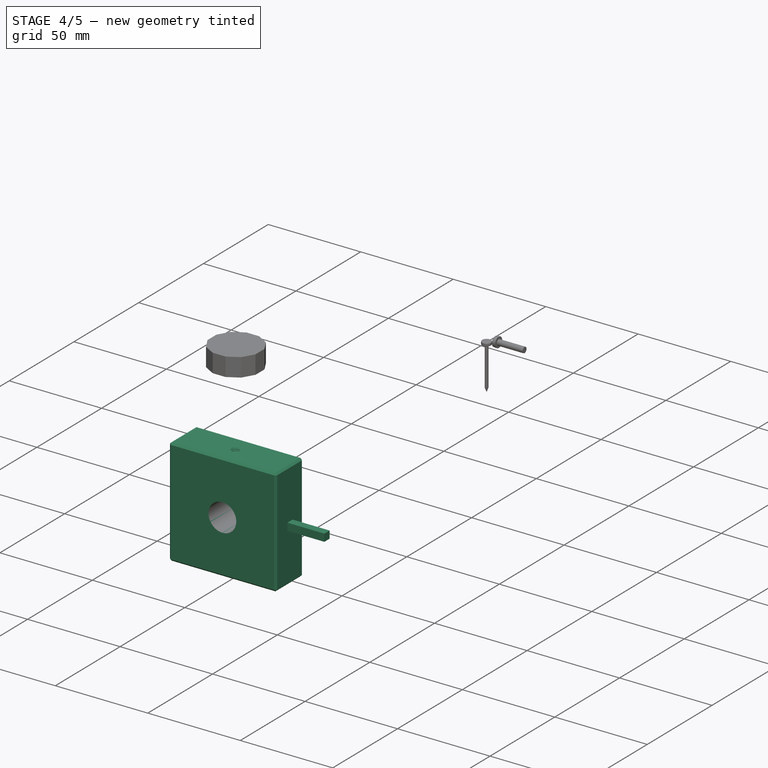
[diagram: stage 4 of 5 — iso view after this stage's code; geometry added in this stage tinted green]
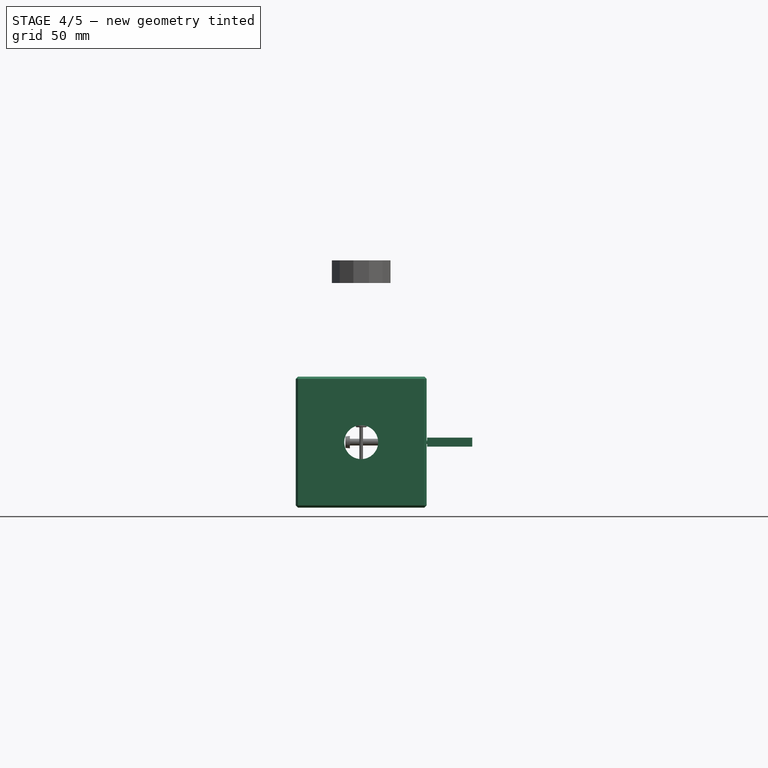
[diagram: stage 4 of 5 — front view after this stage's code; geometry added in this stage tinted green]
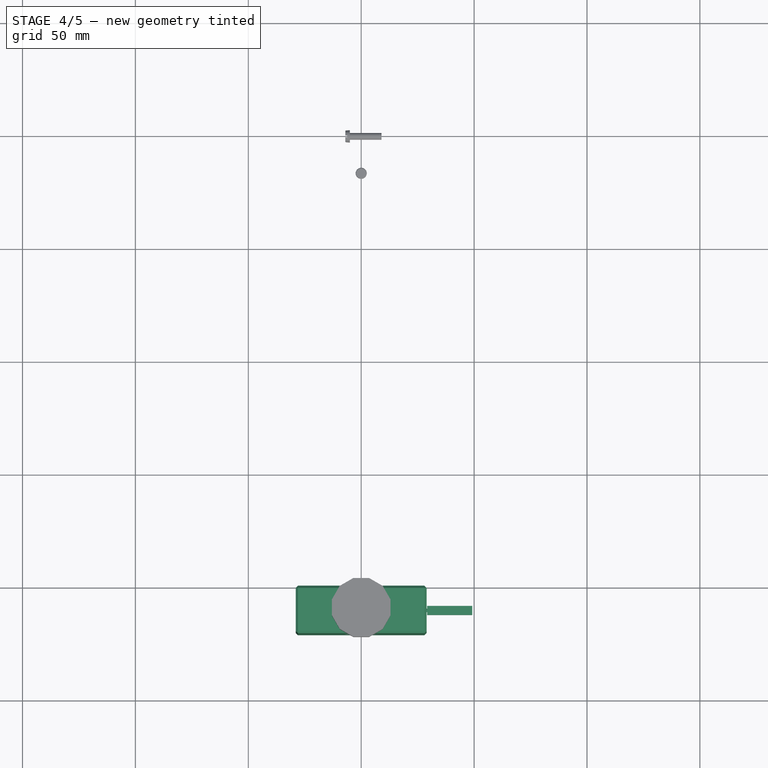
[diagram: stage 4 of 5 — top view after this stage's code; geometry added in this stage tinted green]
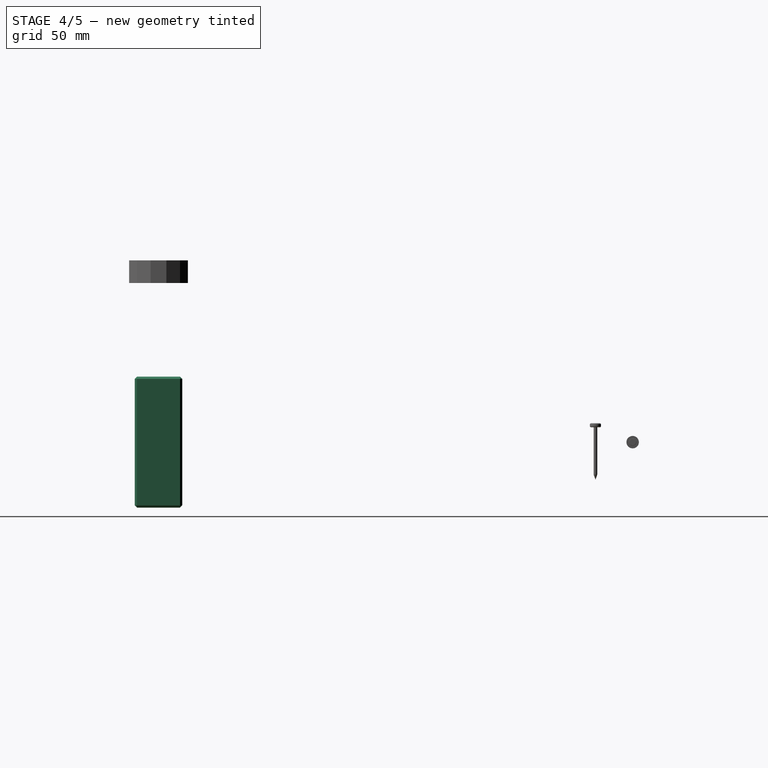
[diagram: stage 4 of 5 — right view after this stage's code; geometry added in this stage tinted green]
FEATURE [PartDesign::Body] Body
  AllowCompound = false
  Group = -> [Sketch,Pad,Sketch001,Pad001,Sketch002,Pocket,Sketch003,Pocket001,Sketch004,Pocket002,DatumPlane,Sketch005,Pocket003,Sketch006,Pocket004,DatumPlane002,DatumPlane003,Sketch013,Pocket007,Sketch014,Pocket008,Sketch015,Pocket009]
  Origin = -> Origin
  Tip = -> Pocket009
FEATURE [PartDesign::SubShapeBinder] Binder
  BindCopyOnChange = 0
  BindMode = 0
  ClaimChildren = false
  Context = -> Body003 [Binder.]
  Fuse = false
  MakeFace = true
  OffsetFill = false
  OffsetIntersection = false
  OffsetJoinType = 0
  OffsetOpenResult = false
  PartialLoad = false
  Refine = true
  Relative = true
  Support = -> [Body001]
  _Version = 2
FEATURE [Sketcher::SketchObject] Sketch016
  ArcFitTolerance = 1e-06
  AttachmentSupport = -> [Binder]
  ExternalGeometry = -> [Binder]
  FullyConstrained = true
  MakeInternals = false
  MapMode = 5
  Placement = pos=(0,-50,1.1e-14) rot=(1,0,0;1.5708rad)
  sketch-geometry (6):
    g0: LineSegment StartX=-29 StartY=-29 StartZ=0 EndX=29 EndY=-29 EndZ=0
    g1: LineSegment StartX=29 StartY=-29 StartZ=0 EndX=29 EndY=29 EndZ=0
    g2: LineSegment StartX=29 StartY=29 StartZ=0 EndX=-29 EndY=29 EndZ=0
    g3: LineSegment StartX=-29 StartY=29 StartZ=0 EndX=-29 EndY=-29 EndZ=0
    g4: GeomPoint [constr] X=0 Y=0 Z=0
    g5: Circle CenterX=0 CenterY=0 CenterZ=0 NormalX=0 NormalY=0 NormalZ=1 AngleXU=0 Radius=7.5
  constraints (14):
    c: Coincident(g0,g1)
    c: Coincident(g1,g2)
    c: Coincident(g2,g3)
    c: Coincident(g3,g0)
    c: Horizontal(g0)
    c: Horizontal(g2)
    c: Vertical(g1)
    c: Vertical(g3)
    c: Symmetric(g2,g0,g4)
    c: Distance(g1,g3) = 58
    c: Distance(g0,g2) = 58
    c: Coincident(g4,g-1)
    c: Coincident(g5,g4)
    c: Equal(g5,g-3)
FEATURE [PartDesign::Pad] Pad005
  Direction = (0,-1,2e-16)
  Length = 21
  Length2 = 10
  Profile = -> Sketch016
  ReferenceAxis = -> Sketch016 [N_Axis]
  Refine = true
  Suppressed = false
  Type = 0
FEATURE [Sketcher::SketchObject] Sketch017
  ArcFitTolerance = 1e-06
  AttachmentSupport = -> [Pad005]
  ExternalGeometry = -> [Pad005]
  FullyConstrained = true
  MakeInternals = false
  MapMode = 5
  Placement = pos=(0,6.4e-15,29) rot=(0,0,1;0rad)
  sketch-geometry (3):
    g0: LineSegment [constr] StartX=-1e-15 StartY=-50 StartZ=0 EndX=0 EndY=-60.5 EndZ=0
    g1: LineSegment [constr] StartX=0 StartY=-60.5 StartZ=0 EndX=1e-15 EndY=-71 EndZ=0
    g2: Circle CenterX=0 CenterY=-60.5 CenterZ=0 NormalX=0 NormalY=0 NormalZ=1 AngleXU=0 Radius=2.5
  constraints (7):
    c: Symmetric(g-3,g-3,g0)
    c: PointOnObject(g0,g-2)
    c: Coincident(g1,g0)
    c: Symmetric(g-4,g-4,g1)
    c: Equal(g0,g1)
    c: Diameter(g2) = 5
    c: Coincident(g2,g0)
FEATURE [PartDesign::Hole] Hole
  BaseFeature = -> Pad005
  CustomThreadClearance = 0
  Depth = 25
  DepthType = 0
  Diameter = 4.224
  DrillForDepth = false
  DrillPoint = 1
  DrillPointAngle = 118
  HoleCutCountersinkAngle = 90
  HoleCutCustomValues = false
  HoleCutDepth = 0
  HoleCutDiameter = 6.1
  HoleCutType = 0
  ModelThread = true
  Profile = -> Sketch017
  Refine = true
  Suppressed = false
  Tapered = false
  TaperedAngle = 90
  ThreadClass = 0
  ThreadDepth = 25
  ThreadDepthType = 0
  ThreadDirection = 0
  ThreadFit = 0
  ThreadSize = 13
  ThreadType = 1
  Threaded = true
  UseCustomThreadClearance = false
FEATURE [PartDesign::Chamfer] Chamfer001
  Angle = 45
  Base = -> Hole [Edge8,Edge11,Edge5,Edge13,Edge7,Edge10,Edge9,Edge6,Edge1,Edge4,Edge3,Edge2]
  BaseFeature = -> Hole
  ChamferType = 0
  FlipDirection = false
  Refine = true
  Size = 1
  Size2 = 1
  SupportTransform = false
  Suppressed = false
  UseAllEdges = false
FEATURE [PartDesign::Body] Body006  label="sharp_edge_cover"
  AllowCompound = false
  Group = -> [Binder002,Sketch021,Revolution002]
  Origin = -> Origin006
  Tip = -> Revolution002
FEATURE [Sketcher::SketchObject] Sketch024
  ArcFitTolerance = 1e-06
  AttachmentSupport = -> [Chamfer001]
  ExternalGeometry = -> [Chamfer001]
  FullyConstrained = true
  MakeInternals = false
  MapMode = 5
  Placement = pos=(29,0,0) rot=(0.57735,0.57735,0.57735;2.0944rad)
  sketch-geometry (3):
    g0: LineSegment [constr] StartX=-71 StartY=1.58e-14 StartZ=0 EndX=-60.5 EndY=0 EndZ=0
    g1: LineSegment [constr] StartX=-60.5 StartY=0 StartZ=0 EndX=-50 EndY=5.6e-15 EndZ=0
    g2: Circle CenterX=-60.5 CenterY=0 CenterZ=0 NormalX=0 NormalY=0 NormalZ=1 AngleXU=0 Radius=0.75
  constraints (7):
    c: Symmetric(g-3,g-3,g0)
    c: PointOnObject(g0,g-1)
    c: Coincident(g1,g0)
    c: Symmetric(g-4,g-4,g1)
    c: Equal(g1,g0)
    c: Diameter(g2) = 1.5
    c: Coincident(g2,g0)
FEATURE [PartDesign::Pad] Pad008
  BaseFeature = -> Chamfer001
  Direction = (1,0,0)
  Length = 16.5
  Length2 = 10
  Profile = -> Sketch024
  ReferenceAxis = -> Sketch024 [N_Axis]
  Refine = true
  Suppressed = false
  Type = 0
FEATURE [PartDesign::Chamfer] Chamfer002
  Angle = 45
  Base = -> Pad008 [Edge61]
  BaseFeature = -> Pad008
  ChamferType = 1
  FlipDirection = false
  Refine = true
  Size = 2.5
  Size2 = 0.7
  SupportTransform = false
  Suppressed = false
  UseAllEdges = false
FEATURE [PartDesign::Body] Body003  label="square"
  AllowCompound = false
  Group = -> [Binder,Sketch016,Pad005,Sketch017,Hole,Chamfer001,Sketch024,Pad008,Chamfer002]
  Origin = -> Origin003
  Tip = -> Chamfer002
FEATURE [PartDesign::SubShapeBinder] Binder003
  BindCopyOnChange = 0
  BindMode = 0
  ClaimChildren = false
  Context = -> Body007 [Binder003.]
  Fuse = false
  MakeFace = true
  OffsetFill = false
  OffsetIntersection = false
  OffsetJoinType = 0
  OffsetOpenResult = false
  PartialLoad = false
  Refine = true
  Relative = true
  Support = -> [Body003]
  _Version = 2
FEATURE [PartDesign::Plane] DatumPlane005
  AttachmentOffset = pos=(0,0,0) rot=(0,1,0;1.5708rad)
  AttachmentSupport = -> [Binder003]
  Length = 86.382
  MapMode = 45
  Placement = pos=(29,-60.5,2.39e-14) rot=(0,0.707107,0.707107;3.14159rad)
  ResizeMode = 0
  Width = 62.182
FEATURE [Sketcher::SketchObject] Sketch022
  ArcFitTolerance = 1e-06
  AttachmentSupport = -> [DatumPlane005]
  FullyConstrained = true
  MakeInternals = false
  MapMode = 5
  Placement = pos=(29,-60.5,2.39e-14) rot=(0,0.707107,0.707107;3.14159rad)
  sketch-geometry (4):
    g0: LineSegment StartX=-0.2 StartY=2 StartZ=0 EndX=-20.2 EndY=2 EndZ=0
    g1: LineSegment StartX=-20.2 StartY=2 StartZ=0 EndX=-20.2 EndY=-2 EndZ=0
    g2: LineSegment StartX=-20.2 StartY=-2 StartZ=0 EndX=-0.2 EndY=-2 EndZ=0
    g3: LineSegment StartX=-0.2 StartY=-2 StartZ=0 EndX=-0.2 EndY=2 EndZ=0
  constraints (11):
    c: Coincident(g0,g1)
    c: Coincident(g1,g2)
    c: Coincident(g2,g3)
    c: Coincident(g3,g0)
    c: Horizontal(g0)
    c: Horizontal(g2)
    c: Vertical(g1)
    c: DistanceX(g0,g0) = 20
    c: Distance(g1,g1) = 4
    c: Symmetric(g0,g2,g-1)
    c: Distance(g0,g-2) = 0.2
FEATURE [PartDesign::Pad] Pad007
  Direction = (0,1,-2e-16)
  Length = 4
  Length2 = 10
  Midplane = true
  Placement = pos=(29,-60.5,2.39e-14) rot=(0,0.707107,0.707107;3.14159rad)
  Profile = -> Sketch022
  ReferenceAxis = -> Sketch022 [N_Axis]
  Refine = true
  Suppressed = false
  Type = 0
FEATURE [Sketcher::SketchObject] Sketch023
  ArcFitTolerance = 1e-06
  AttachmentSupport = -> [Pad007]
  FullyConstrained = true
  MakeInternals = false
  MapMode = 5
  Placement = pos=(29.2,-60.5,2.32e-14) rot=(0,-1,0;1.5708rad)
  sketch-geometry (7):
    g0: LineSegment StartX=-0.85 StartY=0.490748 StartZ=0 EndX=-0.85 EndY=-0.490748 EndZ=0
    g1: LineSegment StartX=-0.85 StartY=-0.490748 StartZ=0 EndX=-1.429e-13 EndY=-0.981495 EndZ=0
    g2: LineSegment StartX=-1.429e-13 StartY=-0.981495 StartZ=0 EndX=0.85 EndY=-0.490748 EndZ=0
    g3: LineSegment StartX=0.85 StartY=-0.490748 StartZ=0 EndX=0.85 EndY=0.490748 EndZ=0
    g4: LineSegment StartX=0.85 StartY=0.490748 StartZ=0 EndX=-1.43e-13 EndY=0.981495 EndZ=0
    g5: LineSegment StartX=-1.43e-13 StartY=0.981495 StartZ=0 EndX=-0.85 EndY=0.490748 EndZ=0
    g6: Circle [constr] CenterX=0 CenterY=0 CenterZ=0 NormalX=0 NormalY=0 NormalZ=1 AngleXU=0 Radius=0.981495
  constraints (16):
    c: Coincident(g0,g1)
    c: Coincident(g1,g2)
    c: Coincident(g2,g3)
    c: Coincident(g3,g4)
    c: Coincident(g4,g5)
    c: Coincident(g5,g0)
    c: Equal(g0, g1-g5) x5
    c: PointOnObject(g0,g6)
    c: PointOnObject(g1,g6)
    c: PointOnObject(g2,g6)
    c: PointOnObject(g3,g6)
    c: PointOnObject(g4,g6)
    c: PointOnObject(g5,g6)
    c: Coincident(g6,g-1)
    c: Vertical(g0)
    c: DistanceX(g0,g3) = 1.7
FEATURE [PartDesign::Pocket] Pocket011
  BaseFeature = -> Pad007
  Direction = (1,0,-3.6e-15)
  Length = 17
  Length2 = 5
  Placement = pos=(29,-60.5,2.39e-14) rot=(0,0.707107,0.707107;3.14159rad)
  Profile = -> Sketch023
  ReferenceAxis = -> Sketch023 [N_Axis]
  Refine = true
  Suppressed = false
  Type = 0
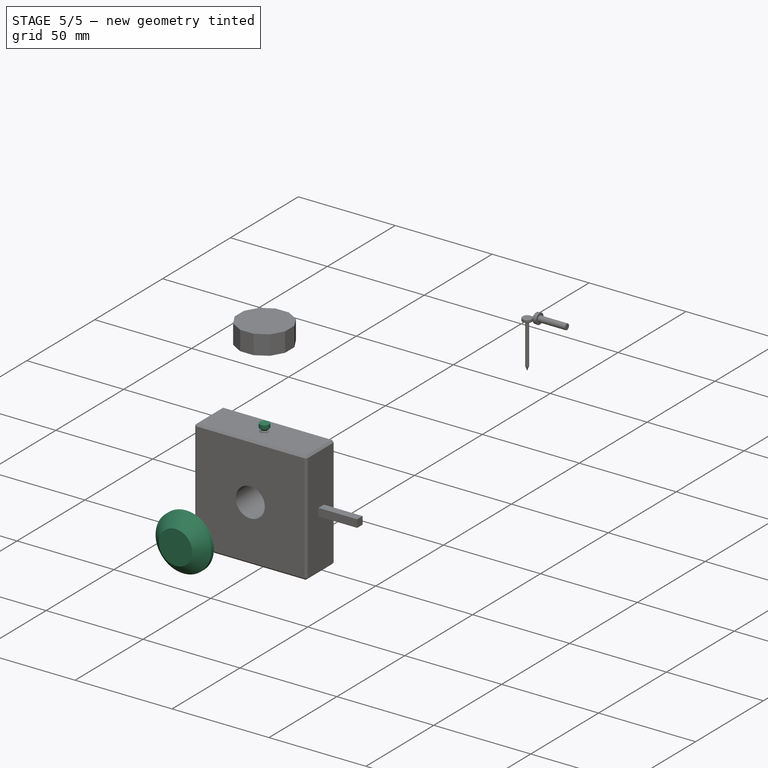
[diagram: stage 5 of 5 — iso view after this stage's code; geometry added in this stage tinted green]
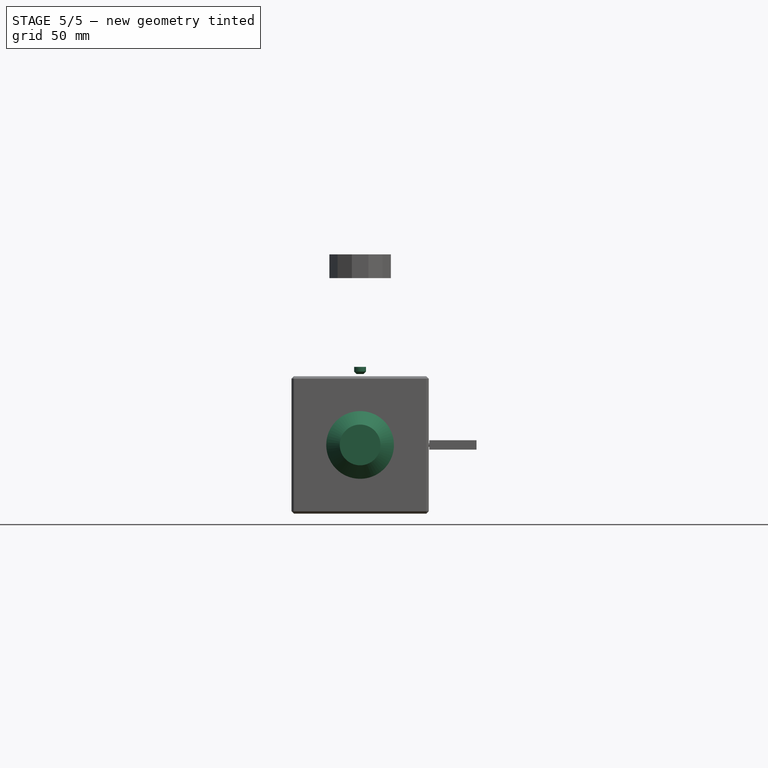
[diagram: stage 5 of 5 — front view after this stage's code; geometry added in this stage tinted green]
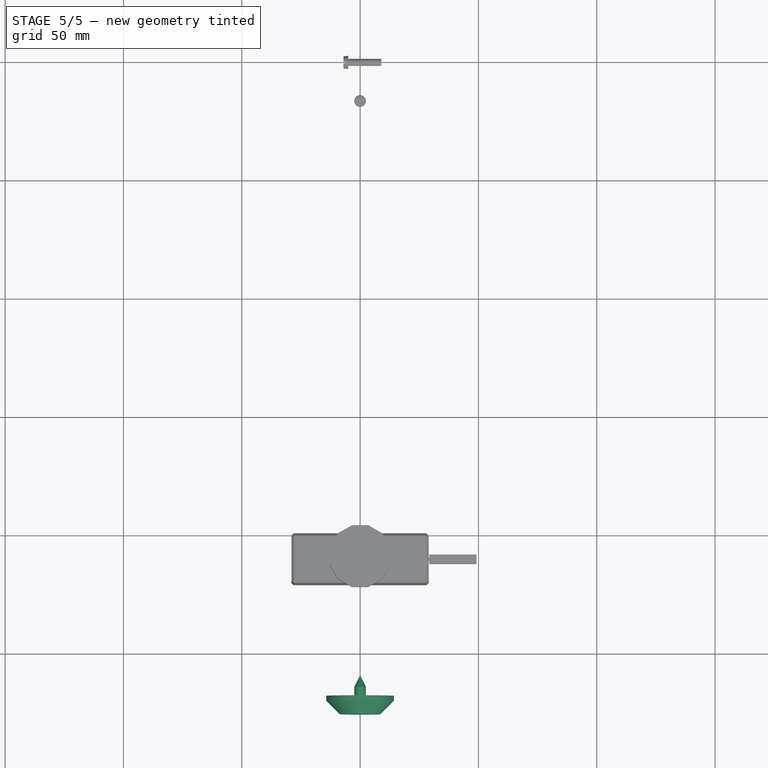
[diagram: stage 5 of 5 — top view after this stage's code; geometry added in this stage tinted green]
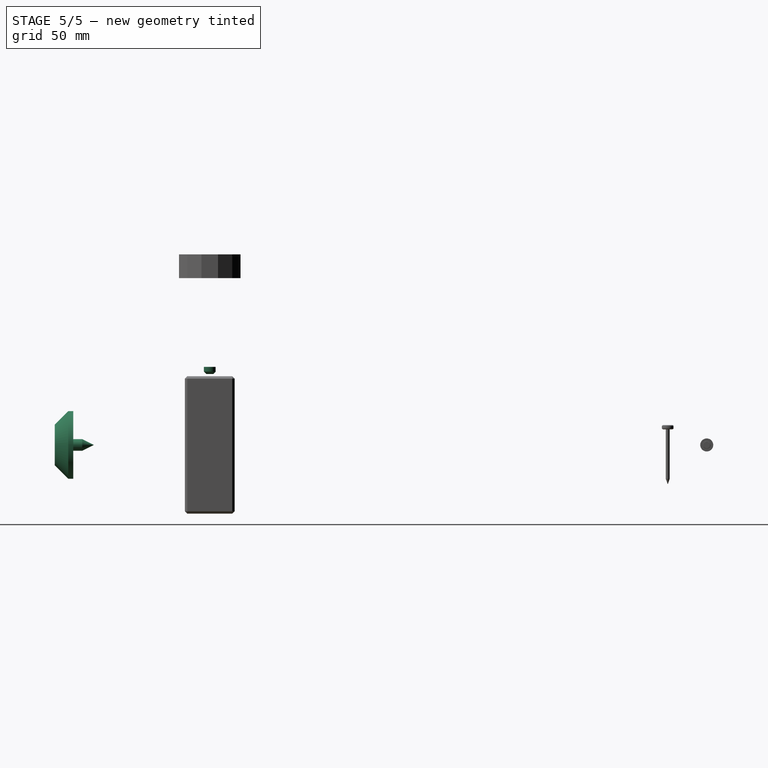
[diagram: stage 5 of 5 — right view after this stage's code; geometry added in this stage tinted green]
FEATURE [PartDesign::Plane] DatumPlane004
  AttachmentOffset = pos=(0,0,30) rot=(0,0,1;0rad)
  AttachmentSupport = -> [XY_Plane002]
  Length = 63.2657
  MapMode = 5
  Placement = pos=(0,0,30) rot=(0,0,1;0rad)
  ResizeMode = 0
  Width = 101.255
FEATURE [Sketcher::SketchObject] Sketch012
  ArcFitTolerance = 1e-06
  AttachmentSupport = -> [DatumPlane004]
  FullyConstrained = true
  MakeInternals = false
  MapMode = 5
  Placement = pos=(0,0,30) rot=(0,0,1;0rad)
  sketch-geometry (1):
    g0: Circle CenterX=0 CenterY=-60.5 CenterZ=0 NormalX=0 NormalY=0 NormalZ=1 AngleXU=0 Radius=2.5
  constraints (3):
    c: Diameter(g0) = 5
    c: PointOnObject(g0,g-2)
    c: Distance(g0,g-1) = 60.5
FEATURE [PartDesign::Pad] Pad004
  Direction = (0,0,1)
  Length = 3
  Length2 = 10
  Placement = pos=(0,0,30) rot=(0,0,1;0rad)
  Profile = -> Sketch012
  ReferenceAxis = -> Sketch012 [N_Axis]
  Refine = true
  Suppressed = false
  Type = 0
FEATURE [PartDesign::Chamfer] Chamfer
  Angle = 45
  Base = -> Pad004 [Edge2]
  BaseFeature = -> Pad004
  ChamferType = 0
  FlipDirection = false
  Placement = pos=(0,0,30) rot=(0,0,1;0rad)
  Refine = true
  Size = 1
  Size2 = 1
  SupportTransform = false
  Suppressed = false
  UseAllEdges = false
FEATURE [PartDesign::Body] Body002  label="padding"
  AllowCompound = false
  Group = -> [Sketch012,Pad004,Chamfer,DatumPlane004]
  Origin = -> Origin002
  Tip = -> Chamfer
FEATURE [Sketcher::SketchObject] Sketch018
  ArcFitTolerance = 1e-06
  AttachmentSupport = -> [XZ_Plane004]
  FullyConstrained = true
  MakeInternals = false
  MapMode = 5
  Placement = pos=(0,0,0) rot=(1,0,0;1.5708rad)
  sketch-geometry (1):
    g0: Circle CenterX=0 CenterY=0 CenterZ=0 NormalX=0 NormalY=0 NormalZ=1 AngleXU=0 Radius=6.6
  constraints (2):
    c: Diameter(g0) = 13.2
    c: Coincident(g0,g-1)
FEATURE [PartDesign::Pad] Pad006
  Direction = (0,-1,2e-16)
  Length = 120
  Length2 = 130
  Placement = pos=(0,0,0) rot=(1,0,0;1.5708rad)
  Profile = -> Sketch018
  ReferenceAxis = -> Sketch018 [N_Axis]
  Refine = true
  Suppressed = false
  Type = 4
FEATURE [Sketcher::SketchObject] Sketch019
  ArcFitTolerance = 1e-06
  AttachmentSupport = -> [Pad006]
  ExternalGeometry = -> [Pad006]
  FullyConstrained = true
  MakeInternals = false
  MapMode = 5
  Placement = pos=(0,130,0) rot=(-1,0,0;1.5708rad)
  sketch-geometry (2):
    g0: ArcOfCircle CenterX=0 CenterY=0 CenterZ=0 NormalX=0 NormalY=0 NormalZ=1 AngleXU=0 Radius=6.6 StartAngle=0.859591 EndAngle=2.282
    g1: LineSegment StartX=-4.30813 StartY=5 StartZ=0 EndX=4.30813 EndY=5 EndZ=0
  constraints (8):
    c: Coincident(g0,g-1)
    c: Equal(g-3,g0)
    c: Horizontal(g1)
    c: PointOnObject(g0,g1)
    c: PointOnObject(g0,g1)
    c: PointOnObject(g1,g-3)
    c: PointOnObject(g1,g-3)
    c: Distance(g0,g1) = 5
FEATURE [PartDesign::Pocket] Pocket010
  BaseFeature = -> Pad006
  Direction = (0,-1,-2e-16)
  Length = 15
  Length2 = 5
  Placement = pos=(0,0,0) rot=(1,0,0;1.5708rad)
  Profile = -> Sketch019
  ReferenceAxis = -> Sketch019 [N_Axis]
  Refine = true
  Suppressed = false
  Type = 0
FEATURE [PartDesign::Body] Body004  label="rod"
  AllowCompound = false
  Group = -> [Sketch018,Pad006,Sketch019,Pocket010]
  Origin = -> Origin004
  Tip = -> Pocket010
FEATURE [PartDesign::SubShapeBinder] Binder001
  BindCopyOnChange = 0
  BindMode = 0
  ClaimChildren = false
  Context = -> Body005 [Binder001.]
  Fuse = false
  MakeFace = true
  OffsetFill = false
  OffsetIntersection = false
  OffsetJoinType = 0
  OffsetOpenResult = false
  PartialLoad = false
  Refine = true
  Relative = true
  Support = -> [Body004]
  _Version = 2
FEATURE [Sketcher::SketchObject] Sketch020
  ArcFitTolerance = 1e-06
  AttachmentSupport = -> [YZ_Plane005]
  ExternalGeometry = -> [Binder001]
  FullyConstrained = true
  MakeInternals = false
  MapMode = 5
  Placement = pos=(0,0,0) rot=(0.57735,0.57735,0.57735;2.0944rad)
  sketch-geometry (4):
    g0: LineSegment StartX=-120 StartY=2.5 StartZ=0 EndX=-120 EndY=12.5 EndZ=0
    g1: LineSegment StartX=-120 StartY=12.5 StartZ=0 EndX=-123 EndY=7.30385 EndZ=0
    g2: LineSegment StartX=-123 StartY=7.30385 StartZ=0 EndX=-123 EndY=2.5 EndZ=0
    g3: LineSegment StartX=-123 StartY=2.5 StartZ=0 EndX=-120 EndY=2.5 EndZ=0
  constraints (12):
    c: Vertical(g0)
    c: Coincident(g0,g1)
    c: Coincident(g1,g2)
    c: Vertical(g2)
    c: Coincident(g2,g3)
    c: Horizontal(g3)
    c: Coincident(g3,g0)
    c: Distance(g0,g-1) = 12.5
    c: DistanceX(g3,g3) = 3
    c: PointOnObject(g0,g-3)
    c: Distance(g0,g-1) = 2.5
    c: Angle(g1,g0) = 0.523599
FEATURE [PartDesign::Revolution] Revolution001
  Angle = 360
  Angle2 = 60
  Axis = (1e-16,1,-1e-16)
  Base = (0,0,0)
  Placement = pos=(0,0,0) rot=(1,1,1;2.0944rad)
  Profile = -> Sketch020
  ReferenceAxis = -> Y_Axis005
  Refine = true
  Reversed = true
  Suppressed = false
  Type = 0
FEATURE [PartDesign::Body] Body005  label="sharp_edge"
  AllowCompound = false
  Group = -> [Binder001,Sketch020,Revolution001]
  Origin = -> Origin005
  Tip = -> Revolution001
FEATURE [Part::FeaturePython] Screw  label="#10x5/8in-Screw"  # WARN: FeaturePython — macro-defined, semantics opaque (R4)
  Diameter = 11
  Invert = true
  LeftHanded = false
  Length = 0
  LengthCustom = 15.875
  MatchOuter = false
  OffsetAngle = 0
  Placement = pos=(-1.53e-14,-125.346,5.4e-14) rot=(-1,0,0;4.71239rad)
  Thread = false
  Type = 14
FEATURE [PartDesign::SubShapeBinder] Binder002
  BindCopyOnChange = 0
  BindMode = 0
  ClaimChildren = false
  Context = -> Body006 [Binder002.]
  Fuse = false
  MakeFace = true
  OffsetFill = false
  OffsetIntersection = false
  OffsetJoinType = 0
  OffsetOpenResult = false
  PartialLoad = false
  Refine = true
  Relative = true
  Support = -> [Body005]
  _Version = 2
FEATURE [Sketcher::SketchObject] Sketch021
  ArcFitTolerance = 1e-06
  AttachmentSupport = -> [YZ_Plane006]
  ExternalGeometry = -> [Binder002]
  FullyConstrained = true
  MakeInternals = false
  MapMode = 5
  Placement = pos=(0,0,0) rot=(0.57735,0.57735,0.57735;2.0944rad)
  sketch-geometry (10):
    g0: LineSegment StartX=-124.5 StartY=0 StartZ=0 EndX=-124.5 EndY=5.52539 EndZ=0
    g1: LineSegment StartX=-124.5 StartY=5.52539 StartZ=0 EndX=-120.3 EndY=12.8 EndZ=0
    g2: LineSegment StartX=-120.3 StartY=12.8 StartZ=0 EndX=-119.7 EndY=12.8 EndZ=0
    g3: LineSegment StartX=-119.7 StartY=12.8 StartZ=0 EndX=-118.95 EndY=11.8 EndZ=0
    g4: LineSegment StartX=-118.95 StartY=11.8 StartZ=0 EndX=-118.2 EndY=12.8 EndZ=0
    g5: LineSegment StartX=-118.2 StartY=12.8 StartZ=0 EndX=-118.2 EndY=14.3 EndZ=0
    g6: LineSegment StartX=-118.2 StartY=14.3 StartZ=0 EndX=-120.3 EndY=14.3 EndZ=0
    g7: LineSegment StartX=-126 StartY=8.6 StartZ=0 EndX=-126 EndY=0 EndZ=0
    g8: LineSegment StartX=-126 StartY=0 StartZ=0 EndX=-124.5 EndY=0 EndZ=0
    g9: LineSegment StartX=-120.3 StartY=14.3 StartZ=0 EndX=-126 EndY=8.6 EndZ=0
  constraints (30):
    c: PointOnObject(g0,g-1)
    c: Vertical(g0)
    c: Coincident(g0,g1)
    c: Coincident(g1,g2)
    c: Horizontal(g2)
    c: Coincident(g2,g3)
    c: Coincident(g3,g4)
    c: Coincident(g4,g5)
    c: Vertical(g5)
    c: Coincident(g5,g6)
    c: Horizontal(g6)
    c: PointOnObject(g7,g-1)
    c: Vertical(g7)
    c: Coincident(g7,g8)
    c: Coincident(g8,g0)
    c: Distance(g8,g8) = 1.5
    c: Distance(g0,g-3) = 4.5
    c: Parallel(g1,g-4)
    c: DistanceY(g-4,g1) = 0.3
    c: DistanceX(g-4,g2) = 0.3
    c: Horizontal(g4,g2)
    c: Equal(g3,g4)
    c: DistanceY(g5,g5) = 1.5
    c: DistanceX(g1,g-4) = 0.3
    c: DistanceX(g2,g4) = 1.5
    c: DistanceY(g3,g2) = 1
    c: Coincident(g7,g9)
    c: Angle(g9,g6) = 2.35619
    c: Coincident(g9,g6)
    c: Vertical(g1,g6)
FEATURE [PartDesign::Revolution] Revolution002
  Angle = 360
  Angle2 = 60
  Axis = (1e-16,1,-1e-16)
  Base = (0,0,0)
  Placement = pos=(0,0,0) rot=(1,1,1;2.0944rad)
  Profile = -> Sketch021
  ReferenceAxis = -> Y_Axis006
  Refine = true
  Suppressed = false
  Type = 0
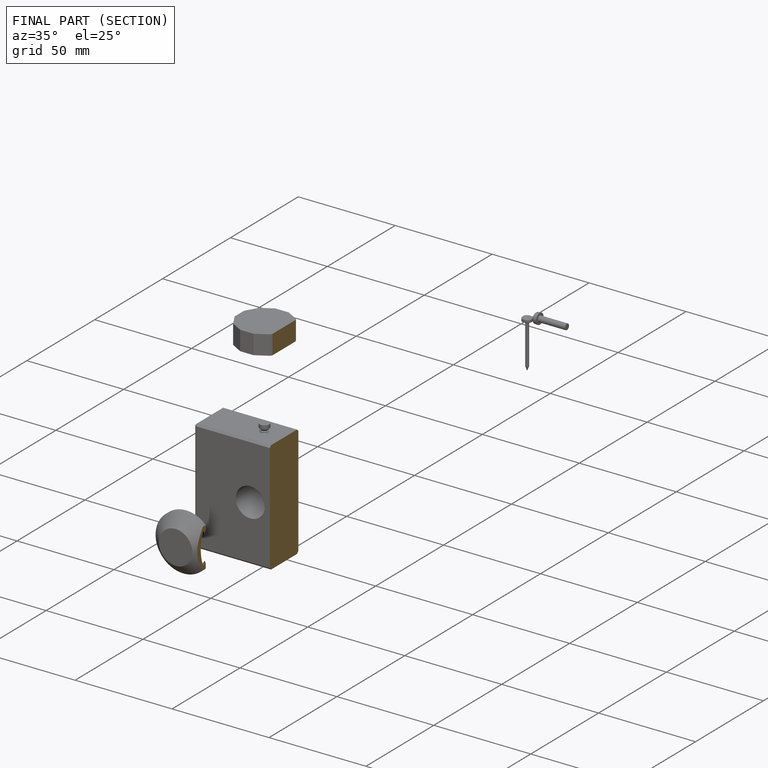
[diagram: finished part — half-section view (interior)]
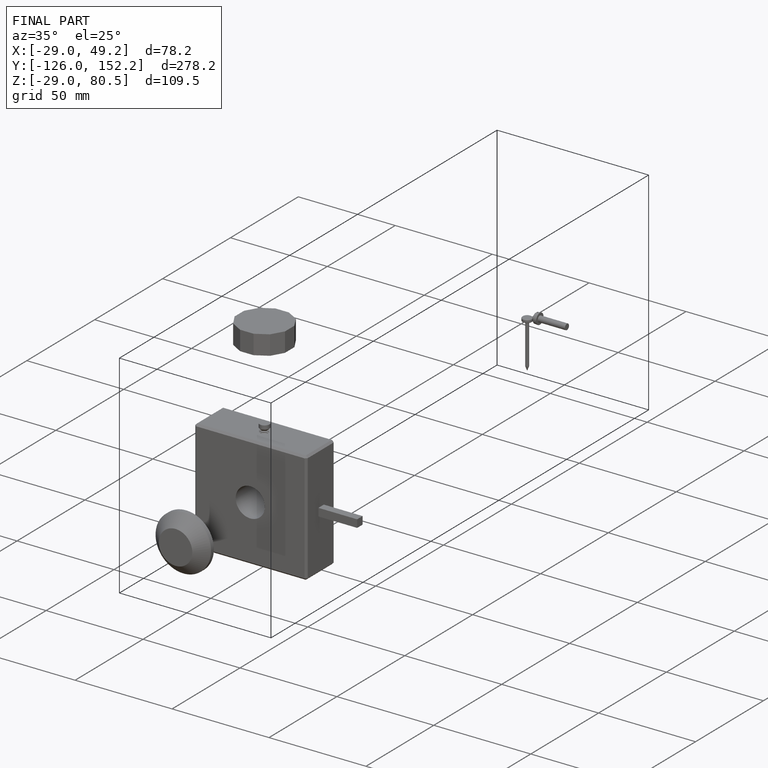
[diagram: finished part — iso view with bounding-box wireframe]
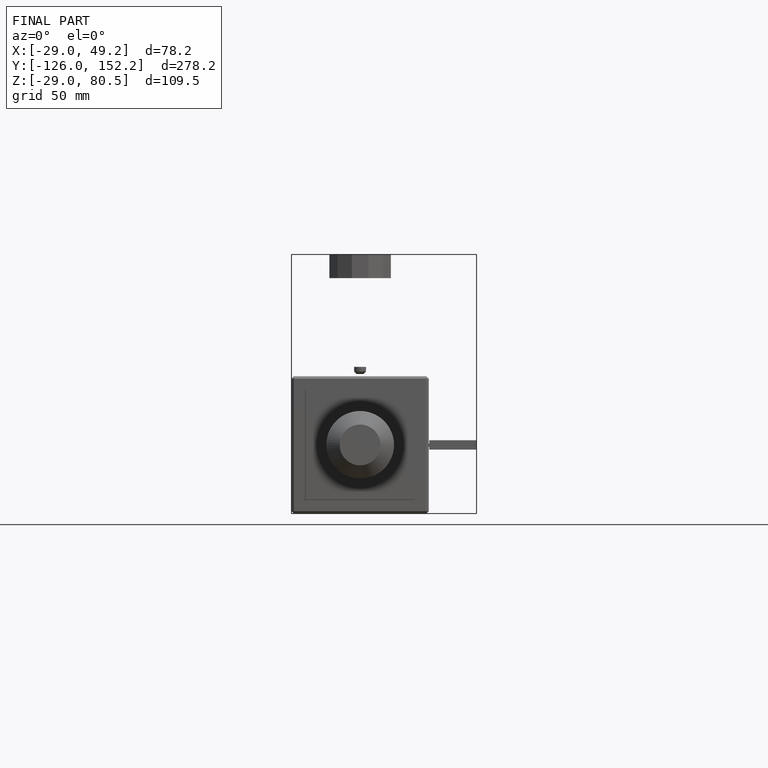
[diagram: finished part — front view with bounding-box wireframe]
